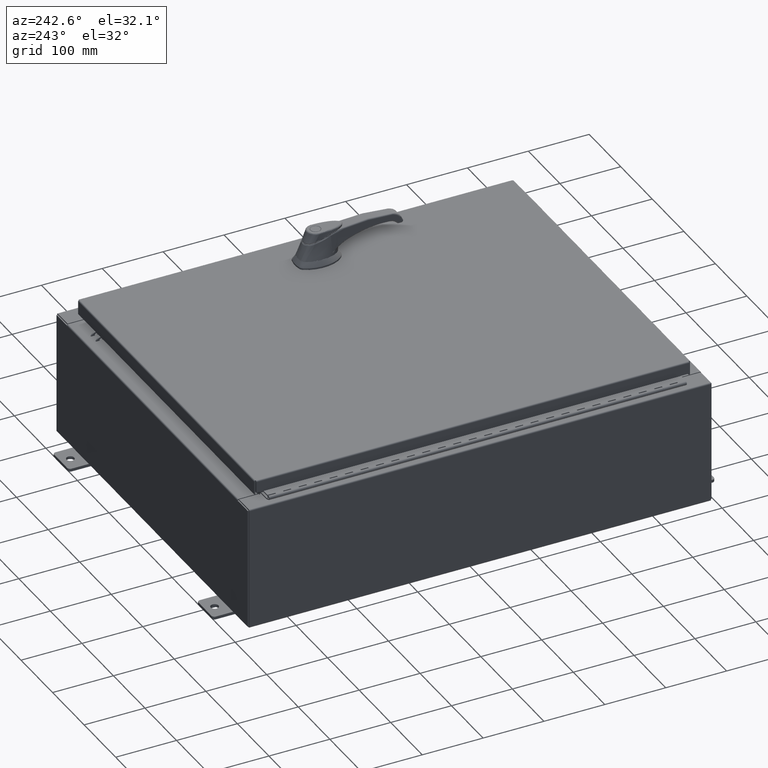
[diagram: clean part render]
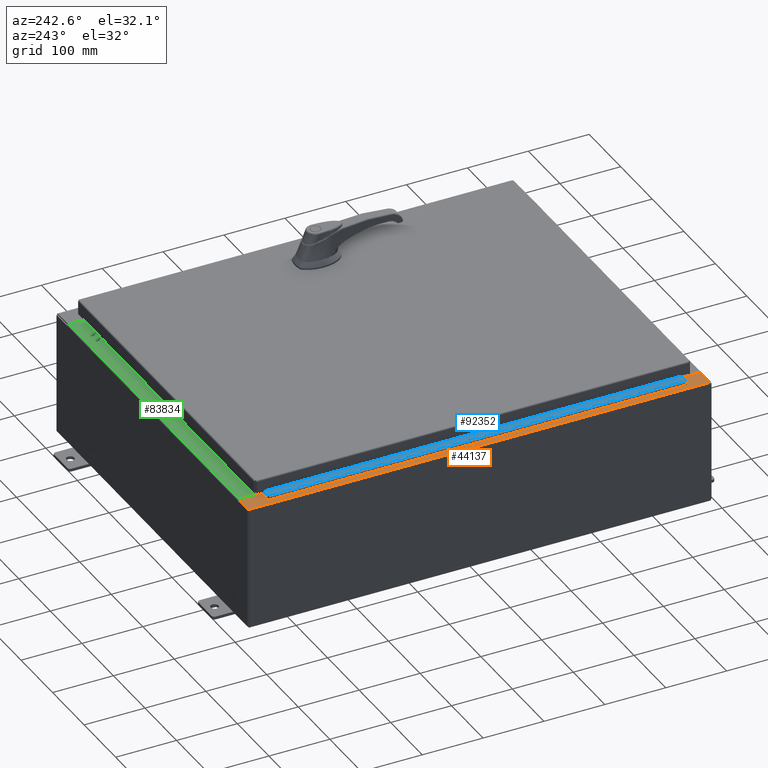
[diagram: same view with three faces highlighted in distinct colors, each labeled with its STEP entity id]
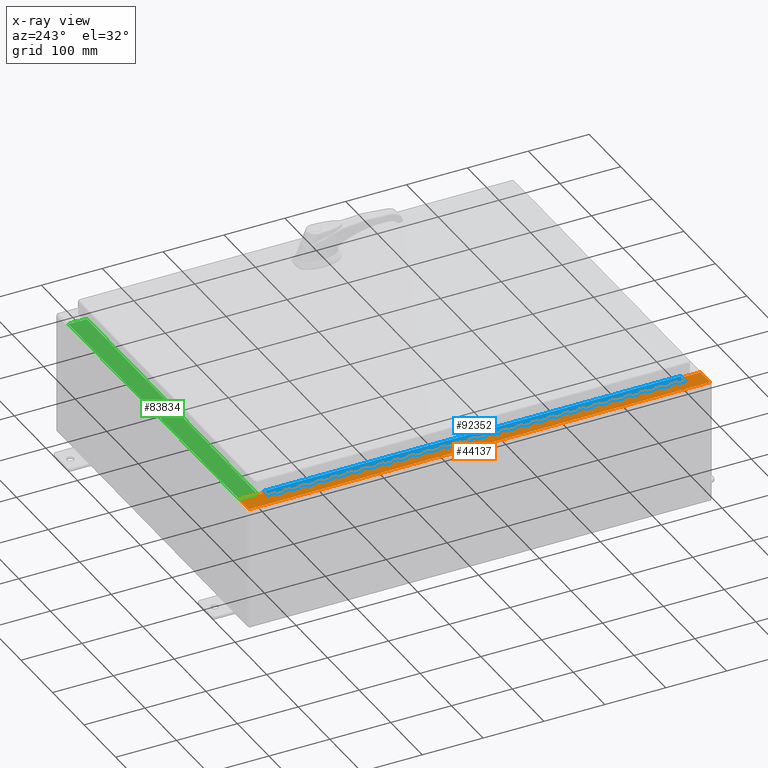
[diagram: x-ray of the same camera — body ghosted, the three highlighted faces saturated]
A machine part, auxiliary view with three faces highlighted in distinct colors.
The next image is the same camera in x-ray (body ghosted, the three faces saturated) — at least one of them is partly hidden behind the body in this view.
Their STEP definitions:

[orange] entity #44137 — the highlighted planar face has unit normal (0, 0, -1).
#334 = VERTEX_POINT ( 'NONE', #7358 ) ;
#1952 = VECTOR ( 'NONE', #107191, 39.37007874015748100 ) ;
#2184 = AXIS2_PLACEMENT_3D ( 'NONE', #57962, #94402, #40113 ) ;
#4300 = ORIENTED_EDGE ( 'NONE', *, *, #53130, .F. ) ;
#4834 = CARTESIAN_POINT ( 'NONE',  ( -10.75005000000003400, 13.61242499999999600, 7.925300000000010700 ) ) ;
#5356 = EDGE_CURVE ( 'NONE', #61987, #334, #106219, .T. ) ;
#6622 = EDGE_CURVE ( 'NONE', #70329, #70460, #43712, .T. ) ;
#7358 = CARTESIAN_POINT ( 'NONE',  ( -10.69970000000003400, -14.92530000000000000, 7.925300000000008900 ) ) ;
#7520 = DIRECTION ( 'NONE',  ( -1.000000000000000000, 0.0000000000000000000, 2.170286390200049500E-014 ) ) ;
#7867 = DIRECTION ( 'NONE',  ( 0.0000000000000000000, 1.000000000000000000, 0.0000000000000000000 ) ) ;
#9525 = ORIENTED_EDGE ( 'NONE', *, *, #65666, .T. ) ;
#12733 = VECTOR ( 'NONE', #49964, 39.37007874015748100 ) ;
#13321 = EDGE_CURVE ( 'NONE', #334, #88103, #74842, .T. ) ;
#13799 = CARTESIAN_POINT ( 'NONE',  ( -10.69970000000003400, 13.63109999999999600, 7.925300000000008900 ) ) ;
#13887 = DIRECTION ( 'NONE',  ( 1.000000000000000000, 0.0000000000000000000, 0.0000000000000000000 ) ) ;
#13994 = CARTESIAN_POINT ( 'NONE',  ( -5.679009539018295300E-014, -14.92530000000000000, 7.925300000000085300 ) ) ;
#15173 = AXIS2_PLACEMENT_3D ( 'NONE', #4834, #68149, #13887 ) ;
#17953 = LINE ( 'NONE', #106807, #42029 ) ;
#18832 = CARTESIAN_POINT ( 'NONE',  ( -10.75005000000003400, -13.63109999999999800, 7.925300000000008900 ) ) ;
#21091 = CARTESIAN_POINT ( 'NONE',  ( -11.91230000000003400, -14.92530000000000000, 7.925300000000000000 ) ) ;
#21416 = VERTEX_POINT ( 'NONE', #22976 ) ;
#22294 = LINE ( 'NONE', #94058, #112963 ) ;
#22976 = CARTESIAN_POINT ( 'NONE',  ( -11.91230000000003400, 14.92530000000000000, 7.925300000000000000 ) ) ;
#25308 = DIRECTION ( 'NONE',  ( -0.0000000000000000000, 1.000000000000000000, -0.0000000000000000000 ) ) ;
#25755 = VECTOR ( 'NONE', #33479, 39.37007874015748100 ) ;
#25954 = LINE ( 'NONE', #89001, #1952 ) ;
#26190 = DIRECTION ( 'NONE',  ( 1.000000000000000000, 0.0000000000000000000, 0.0000000000000000000 ) ) ;
#28384 = CARTESIAN_POINT ( 'NONE',  ( -10.69970000000003400, 14.92530000000000000, 7.925300000000008900 ) ) ;
#28413 = CARTESIAN_POINT ( 'NONE',  ( -5.679009539018295300E-014, 14.92530000000000000, 7.925300000000085300 ) ) ;
#29299 = LINE ( 'NONE', #79575, #53351 ) ;
#29479 = VECTOR ( 'NONE', #7867, 39.37007874015748100 ) ;
#31184 = EDGE_CURVE ( 'NONE', #52061, #70329, #100194, .T. ) ;
#32363 = AXIS2_PLACEMENT_3D ( 'NONE', #107753, #53469, #116839 ) ;
#33479 = DIRECTION ( 'NONE',  ( -1.000000000000000000, 0.0000000000000000000, 0.0000000000000000000 ) ) ;
#33811 = ORIENTED_EDGE ( 'NONE', *, *, #6622, .F. ) ;
#34647 = CARTESIAN_POINT ( 'NONE',  ( -10.75005000000003400, 13.63109999999999600, 7.925300000000008900 ) ) ;
#37132 = DIRECTION ( 'NONE',  ( -1.000000000000000000, 0.0000000000000000000, -7.132762385546384700E-015 ) ) ;
#37836 = CARTESIAN_POINT ( 'NONE',  ( -10.71270000000003500, -13.59375000000000000, 7.925300000000010700 ) ) ;
#40113 = DIRECTION ( 'NONE',  ( -1.000000000000000000, 0.0000000000000000000, -7.132762385546384700E-015 ) ) ;
#41036 = ORIENTED_EDGE ( 'NONE', *, *, #104327, .F. ) ;
#41907 = CARTESIAN_POINT ( 'NONE',  ( -10.75005000000003400, -13.59375000000000000, 7.925300000000008900 ) ) ;
#41946 = VERTEX_POINT ( 'NONE', #37836 ) ;
#42029 = VECTOR ( 'NONE', #61677, 39.37007874015748100 ) ;
#43712 = LINE ( 'NONE', #98307, #82152 ) ;
#44137 = ADVANCED_FACE ( 'NONE', ( #88201 ), #67121, .F. ) ;
#45258 = VERTEX_POINT ( 'NONE', #18832 ) ;
#49964 = DIRECTION ( 'NONE',  ( 1.000000000000000000, -0.0000000000000000000, 7.132762385546384700E-015 ) ) ;
#51039 = CARTESIAN_POINT ( 'NONE',  ( -10.69970000000003400, -13.63110000000000200, 7.925300000000008900 ) ) ;
#51140 = VERTEX_POINT ( 'NONE', #28384 ) ;
#52061 = VERTEX_POINT ( 'NONE', #34647 ) ;
#52800 = CIRCLE ( 'NONE', #32363, 0.01867499999999949400 ) ;
#53130 = EDGE_CURVE ( 'NONE', #100224, #52061, #82351, .T. ) ;
#53351 = VECTOR ( 'NONE', #25308, 39.37007874015748100 ) ;
#53469 = DIRECTION ( 'NONE',  ( -7.132762385546384700E-015, -0.0000000000000000000, 1.000000000000000000 ) ) ;
#53668 = ORIENTED_EDGE ( 'NONE', *, *, #13321, .T. ) ;
#55490 = LINE ( 'NONE', #96605, #25755 ) ;
#57663 = ORIENTED_EDGE ( 'NONE', *, *, #72692, .F. ) ;
#57962 = CARTESIAN_POINT ( 'NONE',  ( -5.679009539018295300E-014, 0.0000000000000000000, 7.925300000000085300 ) ) ;
#59497 = ORIENTED_EDGE ( 'NONE', *, *, #97617, .F. ) ;
#61677 = DIRECTION ( 'NONE',  ( 0.0000000000000000000, 1.000000000000000000, 0.0000000000000000000 ) ) ;
#61702 = CARTESIAN_POINT ( 'NONE',  ( -10.69970000000003400, 13.63109999999999600, 7.925300000000009800 ) ) ;
#61987 = VERTEX_POINT ( 'NONE', #21091 ) ;
#63944 = VERTEX_POINT ( 'NONE', #41907 ) ;
#65666 = EDGE_CURVE ( 'NONE', #100224, #51140, #17953, .T. ) ;
#67121 = PLANE ( 'NONE',  #2184 ) ;
#67163 = DIRECTION ( 'NONE',  ( 1.000000000000000000, 0.0000000000000000000, -2.170286390200049500E-014 ) ) ;
#68149 = DIRECTION ( 'NONE',  ( -7.132762385546384700E-015, -0.0000000000000000000, 1.000000000000000000 ) ) ;
#70329 = VERTEX_POINT ( 'NONE', #79305 ) ;
#70460 = VERTEX_POINT ( 'NONE', #116840 ) ;
#71227 = CARTESIAN_POINT ( 'NONE',  ( -10.69970000000003400, 0.0000000000000000000, 7.925300000000008900 ) ) ;
#72692 = EDGE_CURVE ( 'NONE', #45258, #88103, #22294, .T. ) ;
#74135 = ORIENTED_EDGE ( 'NONE', *, *, #111692, .F. ) ;
#74842 = LINE ( 'NONE', #71227, #29479 ) ;
#79305 = CARTESIAN_POINT ( 'NONE',  ( -10.75005000000003400, 13.59374999999999800, 7.925300000000008900 ) ) ;
#79575 = CARTESIAN_POINT ( 'NONE',  ( -11.91230000000003400, 14.92530000000000000, 7.925300000000000000 ) ) ;
#81372 = ORIENTED_EDGE ( 'NONE', *, *, #85761, .T. ) ;
#81626 = ORIENTED_EDGE ( 'NONE', *, *, #31184, .F. ) ;
#82152 = VECTOR ( 'NONE', #26190, 39.37007874015748100 ) ;
#82351 = LINE ( 'NONE', #61702, #103596 ) ;
#83234 = ORIENTED_EDGE ( 'NONE', *, *, #5356, .T. ) ;
#85131 = EDGE_CURVE ( 'NONE', #63944, #45258, #52800, .T. ) ;
#85761 = EDGE_CURVE ( 'NONE', #51140, #21416, #109416, .T. ) ;
#85836 = ORIENTED_EDGE ( 'NONE', *, *, #85131, .F. ) ;
#88103 = VERTEX_POINT ( 'NONE', #51039 ) ;
#88201 = FACE_OUTER_BOUND ( 'NONE', #91500, .T. ) ;
#89001 = CARTESIAN_POINT ( 'NONE',  ( -10.71270000000003500, 13.59375000000000000, 7.925300000000010700 ) ) ;
#91500 = EDGE_LOOP ( 'NONE', ( #4300, #9525, #81372, #41036, #83234, #53668, #57663, #85836, #59497, #74135, #33811, #81626 ) ) ;
#94058 = CARTESIAN_POINT ( 'NONE',  ( -10.75005000000003400, -13.63109999999999800, 7.925300000000010700 ) ) ;
#94402 = DIRECTION ( 'NONE',  ( 7.132762385546384700E-015, 0.0000000000000000000, -1.000000000000000000 ) ) ;
#96605 = CARTESIAN_POINT ( 'NONE',  ( -10.71270000000003500, -13.59375000000000000, 7.925300000000010700 ) ) ;
#97617 = EDGE_CURVE ( 'NONE', #41946, #63944, #55490, .T. ) ;
#98307 = CARTESIAN_POINT ( 'NONE',  ( -10.75005000000003400, 13.59374999999999800, 7.925300000000010700 ) ) ;
#100194 = CIRCLE ( 'NONE', #15173, 0.01867499999999949400 ) ;
#100224 = VERTEX_POINT ( 'NONE', #13799 ) ;
#103596 = VECTOR ( 'NONE', #7520, 39.37007874015748100 ) ;
#104327 = EDGE_CURVE ( 'NONE', #61987, #21416, #29299, .T. ) ;
#106219 = LINE ( 'NONE', #13994, #12733 ) ;
#106807 = CARTESIAN_POINT ( 'NONE',  ( -10.69970000000003400, 0.0000000000000000000, 7.925300000000008900 ) ) ;
#107191 = DIRECTION ( 'NONE',  ( -0.0000000000000000000, -1.000000000000000000, -0.0000000000000000000 ) ) ;
#107753 = CARTESIAN_POINT ( 'NONE',  ( -10.75005000000003400, -13.61242500000000000, 7.925300000000010700 ) ) ;
#109416 = LINE ( 'NONE', #28413, #112260 ) ;
#111692 = EDGE_CURVE ( 'NONE', #70460, #41946, #25954, .T. ) ;
#112260 = VECTOR ( 'NONE', #37132, 39.37007874015748100 ) ;
#112963 = VECTOR ( 'NONE', #67163, 39.37007874015748100 ) ;
#116839 = DIRECTION ( 'NONE',  ( 1.000000000000000000, 0.0000000000000000000, 0.0000000000000000000 ) ) ;
#116840 = CARTESIAN_POINT ( 'NONE',  ( -10.71270000000003500, 13.59374999999999800, 7.925300000000010700 ) ) ;

[blue] entity #92352 — the highlighted planar face has unit normal (-0, -0, 1).
#135 = VERTEX_POINT ( 'NONE', #37471 ) ;
#166 = VERTEX_POINT ( 'NONE', #73568 ) ;
#213 = ORIENTED_EDGE ( 'NONE', *, *, #74906, .F. ) ;
#237 = DIRECTION ( 'NONE',  ( -3.389037039080723100E-015, -1.000000000000000000, 0.0000000000000000000 ) ) ;
#323 = VECTOR ( 'NONE', #108301, 39.37007874015748100 ) ;
#575 = VECTOR ( 'NONE', #79965, 39.37007874015748100 ) ;
#734 = DIRECTION ( 'NONE',  ( 0.0000000000000000000, -0.0000000000000000000, -1.000000000000000000 ) ) ;
#860 = EDGE_CURVE ( 'NONE', #38036, #102776, #52901, .T. ) ;
#909 = LINE ( 'NONE', #100466, #70276 ) ;
#960 = VERTEX_POINT ( 'NONE', #4240 ) ;
#1025 = LINE ( 'NONE', #51987, #94455 ) ;
#1463 = ORIENTED_EDGE ( 'NONE', *, *, #83393, .T. ) ;
#1484 = DIRECTION ( 'NONE',  ( -3.389037039080723100E-015, -1.000000000000000000, 0.0000000000000000000 ) ) ;
#1500 = CARTESIAN_POINT ( 'NONE',  ( -0.6869999999999973900, 0.8004999999999995500, -5.500000000000000000 ) ) ;
#1513 = DIRECTION ( 'NONE',  ( 3.389037039080723100E-015, 1.000000000000000000, -0.0000000000000000000 ) ) ;
#1650 = DIRECTION ( 'NONE',  ( 0.0000000000000000000, -0.0000000000000000000, -1.000000000000000000 ) ) ;
#1906 = CARTESIAN_POINT ( 'NONE',  ( -0.6869999999999973900, 0.8004999999999995500, -20.50000000000000400 ) ) ;
#1976 = CARTESIAN_POINT ( 'NONE',  ( -0.6869999999999978300, 0.6754999999999996600, -27.00000000000000000 ) ) ;
#2254 = CARTESIAN_POINT ( 'NONE',  ( -0.6869999999999978300, 0.6754999999999996600, -2.000000000000000000 ) ) ;
#2364 = VECTOR ( 'NONE', #42793, 39.37007874015748100 ) ;
#2555 = CARTESIAN_POINT ( 'NONE',  ( -0.6869999999999998300, 0.07549999999999991400, 0.0000000000000000000 ) ) ;
#2559 = CARTESIAN_POINT ( 'NONE',  ( -0.6869999999999982800, 0.5504999999999997700, -2.500000000000000000 ) ) ;
#2593 = LINE ( 'NONE', #95105, #93189 ) ;
#2739 = VECTOR ( 'NONE', #53933, 39.37007874015748100 ) ;
#2781 = EDGE_CURVE ( 'NONE', #77274, #55869, #71158, .T. ) ;
#3097 = VECTOR ( 'NONE', #84527, 39.37007874015748100 ) ;
#3130 = CARTESIAN_POINT ( 'NONE',  ( -0.6869999999999978300, 0.6754999999999996600, -17.00000000000000000 ) ) ;
#3278 = EDGE_CURVE ( 'NONE', #110828, #26119, #69682, .T. ) ;
#3800 = LINE ( 'NONE', #47214, #70339 ) ;
#3893 = ORIENTED_EDGE ( 'NONE', *, *, #860, .F. ) ;
#3925 = CARTESIAN_POINT ( 'NONE',  ( -0.6869999999999973900, 0.8004999999999995500, -2.500000000000000000 ) ) ;
#3997 = DIRECTION ( 'NONE',  ( 0.0000000000000000000, -0.0000000000000000000, -1.000000000000000000 ) ) ;
#4001 = VECTOR ( 'NONE', #71924, 39.37007874015748100 ) ;
#4015 = DIRECTION ( 'NONE',  ( 0.0000000000000000000, 0.0000000000000000000, 1.000000000000000000 ) ) ;
#4195 = EDGE_CURVE ( 'NONE', #94552, #4874, #93619, .T. ) ;
#4240 = CARTESIAN_POINT ( 'NONE',  ( -0.6869999999999978300, 0.6754999999999996600, -18.50000000000000000 ) ) ;
#4302 = VECTOR ( 'NONE', #9124, 39.37007874015748100 ) ;
#4391 = CARTESIAN_POINT ( 'NONE',  ( -0.6869999999999973900, 0.8004999999999995500, -19.00000000000000000 ) ) ;
#4393 = LINE ( 'NONE', #53350, #28365 ) ;
#4446 = CARTESIAN_POINT ( 'NONE',  ( -0.6869999999999982800, 0.5504999999999997700, -25.50000000000000400 ) ) ;
#4508 = EDGE_CURVE ( 'NONE', #19198, #39900, #4393, .T. ) ;
#4685 = ORIENTED_EDGE ( 'NONE', *, *, #76153, .F. ) ;
#4734 = CARTESIAN_POINT ( 'NONE',  ( -0.6869999999999973900, 0.8004999999999995500, -15.50000000000000000 ) ) ;
#4786 = CARTESIAN_POINT ( 'NONE',  ( -0.6869999999999982800, 0.5504999999999997700, -17.00000000000000000 ) ) ;
#4816 = CARTESIAN_POINT ( 'NONE',  ( -0.6869999999999978300, 0.6754999999999996600, -7.499999999999999100 ) ) ;
#4837 = VECTOR ( 'NONE', #734, 39.37007874015748100 ) ;
#4848 = ORIENTED_EDGE ( 'NONE', *, *, #105213, .F. ) ;
#4874 = VERTEX_POINT ( 'NONE', #15697 ) ;
#4882 = DIRECTION ( 'NONE',  ( -3.389037039080723100E-015, -1.000000000000000000, 0.0000000000000000000 ) ) ;
#4999 = EDGE_CURVE ( 'NONE', #105734, #19521, #50974, .T. ) ;
#5213 = VECTOR ( 'NONE', #49934, 39.37007874015748100 ) ;
#5285 = DIRECTION ( 'NONE',  ( 3.389037039080723100E-015, 1.000000000000000000, -0.0000000000000000000 ) ) ;
#5498 = CARTESIAN_POINT ( 'NONE',  ( -0.6869999999999978300, 0.6754999999999996600, -27.00000000000000000 ) ) ;
#5632 = CARTESIAN_POINT ( 'NONE',  ( -0.6869999999999978300, 0.6754999999999996600, -3.500000000000000000 ) ) ;
#5833 = VECTOR ( 'NONE', #111182, 39.37007874015748100 ) ;
#5906 = DIRECTION ( 'NONE',  ( -3.389037039080723100E-015, -1.000000000000000000, 0.0000000000000000000 ) ) ;
#6146 = EDGE_CURVE ( 'NONE', #69404, #77274, #39494, .T. ) ;
#6514 = LINE ( 'NONE', #40327, #27652 ) ;
#6593 = ORIENTED_EDGE ( 'NONE', *, *, #39475, .F. ) ;
#6621 = VERTEX_POINT ( 'NONE', #62260 ) ;
#6725 = ORIENTED_EDGE ( 'NONE', *, *, #95166, .F. ) ;
#6818 = LINE ( 'NONE', #25973, #81853 ) ;
#6819 = DIRECTION ( 'NONE',  ( 3.369016658928398200E-015, 1.000000000000000000, 0.0000000000000000000 ) ) ;
#6958 = ORIENTED_EDGE ( 'NONE', *, *, #113677, .F. ) ;
#7256 = CARTESIAN_POINT ( 'NONE',  ( -0.6869999999999973900, 0.8004999999999995500, -21.50000000000000400 ) ) ;
#7480 = CARTESIAN_POINT ( 'NONE',  ( -0.6869999999999982800, 0.5504999999999997700, -11.00000000000000000 ) ) ;
#7487 = CARTESIAN_POINT ( 'NONE',  ( -0.6869999999999978300, 0.6754999999999996600, -2.999999999999999600 ) ) ;
#7618 = EDGE_CURVE ( 'NONE', #89199, #74137, #9801, .T. ) ;
#7724 = CARTESIAN_POINT ( 'NONE',  ( -0.6869999999999982800, 0.5504999999999997700, -14.49999999999999800 ) ) ;
#7811 = VERTEX_POINT ( 'NONE', #48465 ) ;
#7859 = EDGE_CURVE ( 'NONE', #58267, #10533, #14022, .T. ) ;
#7902 = VECTOR ( 'NONE', #84253, 39.37007874015748100 ) ;
#7906 = ORIENTED_EDGE ( 'NONE', *, *, #62524, .F. ) ;
#8072 = ORIENTED_EDGE ( 'NONE', *, *, #63467, .F. ) ;
#8141 = ORIENTED_EDGE ( 'NONE', *, *, #2781, .F. ) ;
#8173 = VERTEX_POINT ( 'NONE', #108588 ) ;
#8375 = ORIENTED_EDGE ( 'NONE', *, *, #103853, .T. ) ;
#8476 = EDGE_CURVE ( 'NONE', #68626, #57338, #100317, .T. ) ;
#8552 = VECTOR ( 'NONE', #58674, 39.37007874015748100 ) ;
#8565 = VERTEX_POINT ( 'NONE', #93040 ) ;
#8574 = CARTESIAN_POINT ( 'NONE',  ( -0.6869999999999973900, 0.8004999999999995500, -3.500000000000000000 ) ) ;
#8717 = DIRECTION ( 'NONE',  ( 0.0000000000000000000, 0.0000000000000000000, 1.000000000000000000 ) ) ;
#8764 = DIRECTION ( 'NONE',  ( 0.0000000000000000000, 0.0000000000000000000, 1.000000000000000000 ) ) ;
#8856 = ORIENTED_EDGE ( 'NONE', *, *, #10869, .F. ) ;
#8891 = DIRECTION ( 'NONE',  ( 0.0000000000000000000, 0.0000000000000000000, 1.000000000000000000 ) ) ;
#9013 = LINE ( 'NONE', #70878, #575 ) ;
#9052 = LINE ( 'NONE', #107046, #30290 ) ;
#9124 = DIRECTION ( 'NONE',  ( 0.0000000000000000000, -0.0000000000000000000, -1.000000000000000000 ) ) ;
#9229 = CARTESIAN_POINT ( 'NONE',  ( -0.6869999999999982800, 0.5504999999999997700, -2.999999999999999600 ) ) ;
#9334 = VECTOR ( 'NONE', #19486, 39.37007874015748100 ) ;
#9697 = CARTESIAN_POINT ( 'NONE',  ( -0.6869999999999978300, 0.6754999999999996600, -16.50000000000000000 ) ) ;
#9801 = LINE ( 'NONE', #27918, #100426 ) ;
#10015 = VECTOR ( 'NONE', #50075, 39.37007874015748100 ) ;
#10094 = LINE ( 'NONE', #76416, #106416 ) ;
#10118 = CARTESIAN_POINT ( 'NONE',  ( -0.6869999999999982800, 0.5504999999999997700, -14.00000000000000000 ) ) ;
#10134 = EDGE_LOOP ( 'NONE', ( #56243, #18826, #113849, #14686, #113207, #4685, #62419, #110949, #73808, #71548, #114665, #76995, #87966, #77437, #108132, #62742, #57021, #13935, #22891, #58226, #62675, #68043, #113890, #15396, #71224, #12769, #3893, #8856, #105115, #51233, #8141, #14291, #76554, #105044, #62203, #38650, #30820, #14637, #76407, #4848, #75349, #99324, #213, #117030, #79533, #91971, #29826, #80511, #54098, #46241, #78262, #115922, #95339, #45394, #24120, #15617, #112886, #97811, #40811, #48090, #26488, #23036, #64597, #93711, #112969, #65477, #106469, #108978, #90095, #58908, #67960, #56259, #87666, #39104, #17236, #104111, #15677, #83069, #102126, #52472, #103194, #12080, #53106, #13975, #98693, #57779, #59023, #35503, #26040, #33926, #7906, #26880, #1463, #76117, #54392, #83542, #80429, #28366, #6725, #34825, #101982, #23109, #6958, #6593, #72186, #70730, #73174, #27365, #8375, #8072 ) ) ;
#10209 = DIRECTION ( 'NONE',  ( 0.0000000000000000000, 0.0000000000000000000, 1.000000000000000000 ) ) ;
#10242 = EDGE_CURVE ( 'NONE', #51060, #48395, #35341, .T. ) ;
#10513 = VECTOR ( 'NONE', #36177, 39.37007874015748100 ) ;
#10533 = VERTEX_POINT ( 'NONE', #88226 ) ;
#10587 = DIRECTION ( 'NONE',  ( 0.0000000000000000000, -0.0000000000000000000, -1.000000000000000000 ) ) ;
#10695 = CARTESIAN_POINT ( 'NONE',  ( -0.6869999999999978300, 0.6754999999999996600, -25.50000000000000400 ) ) ;
#10869 = EDGE_CURVE ( 'NONE', #71537, #38036, #24143, .T. ) ;
#11079 = CARTESIAN_POINT ( 'NONE',  ( -0.6869999999999982800, 0.5504999999999997700, -22.50000000000000000 ) ) ;
#11139 = LINE ( 'NONE', #44877, #104615 ) ;
#11283 = LINE ( 'NONE', #47449, #56559 ) ;
#11301 = VECTOR ( 'NONE', #26844, 39.37007874015748100 ) ;
#11581 = CARTESIAN_POINT ( 'NONE',  ( -0.6869999999999982800, 0.5504999999999997700, -3.500000000000000000 ) ) ;
#11790 = CARTESIAN_POINT ( 'NONE',  ( -0.6869999999999978300, 0.6754999999999996600, -14.49999999999999800 ) ) ;
#11906 = LINE ( 'NONE', #106270, #35926 ) ;
#11974 = CARTESIAN_POINT ( 'NONE',  ( -0.6869999999999978300, 0.6754999999999996600, -27.00000000000000000 ) ) ;
#12080 = ORIENTED_EDGE ( 'NONE', *, *, #98783, .F. ) ;
#12111 = CARTESIAN_POINT ( 'NONE',  ( -0.6869999999999982800, 0.5504999999999997700, -1.499999999999999800 ) ) ;
#12321 = VERTEX_POINT ( 'NONE', #97969 ) ;
#12464 = EDGE_CURVE ( 'NONE', #12321, #74137, #86271, .T. ) ;
#12757 = CARTESIAN_POINT ( 'NONE',  ( -0.6869999999999978300, 0.6754999999999996600, -8.500000000000000000 ) ) ;
#12769 = ORIENTED_EDGE ( 'NONE', *, *, #37383, .F. ) ;
#13062 = VERTEX_POINT ( 'NONE', #31995 ) ;
#13127 = LINE ( 'NONE', #49997, #34324 ) ;
#13339 = EDGE_CURVE ( 'NONE', #57338, #39210, #98900, .T. ) ;
#13703 = CARTESIAN_POINT ( 'NONE',  ( -0.6869999999999973900, 0.8004999999999995500, -17.00000000000000000 ) ) ;
#13838 = VECTOR ( 'NONE', #58805, 39.37007874015748100 ) ;
#13894 = EDGE_CURVE ( 'NONE', #33550, #66919, #61983, .T. ) ;
#13935 = ORIENTED_EDGE ( 'NONE', *, *, #74078, .F. ) ;
#13975 = ORIENTED_EDGE ( 'NONE', *, *, #66199, .F. ) ;
#14017 = LINE ( 'NONE', #33566, #59296 ) ;
#14022 = LINE ( 'NONE', #39754, #107485 ) ;
#14029 = VECTOR ( 'NONE', #98241, 39.37007874015748100 ) ;
#14038 = VECTOR ( 'NONE', #10209, 39.37007874015748100 ) ;
#14084 = LINE ( 'NONE', #102185, #62232 ) ;
#14135 = VECTOR ( 'NONE', #49008, 39.37007874015748100 ) ;
#14230 = LINE ( 'NONE', #108612, #35414 ) ;
#14254 = DIRECTION ( 'NONE',  ( 0.0000000000000000000, -0.0000000000000000000, -1.000000000000000000 ) ) ;
#14291 = ORIENTED_EDGE ( 'NONE', *, *, #6146, .F. ) ;
#14415 = VECTOR ( 'NONE', #27534, 39.37007874015748100 ) ;
#14454 = LINE ( 'NONE', #109862, #83821 ) ;
#14524 = EDGE_CURVE ( 'NONE', #89900, #10533, #78946, .T. ) ;
#14637 = ORIENTED_EDGE ( 'NONE', *, *, #18649, .F. ) ;
#14686 = ORIENTED_EDGE ( 'NONE', *, *, #106780, .F. ) ;
#14715 = DIRECTION ( 'NONE',  ( -3.389037039080723100E-015, -1.000000000000000000, 0.0000000000000000000 ) ) ;
#14886 = VERTEX_POINT ( 'NONE', #9229 ) ;
#15075 = VERTEX_POINT ( 'NONE', #49559 ) ;
#15193 = LINE ( 'NONE', #55417, #81734 ) ;
#15396 = ORIENTED_EDGE ( 'NONE', *, *, #95980, .F. ) ;
#15617 = ORIENTED_EDGE ( 'NONE', *, *, #105950, .F. ) ;
#15677 = ORIENTED_EDGE ( 'NONE', *, *, #73550, .T. ) ;
#15697 = CARTESIAN_POINT ( 'NONE',  ( -0.6869999999999982800, 0.5504999999999997700, -1.000000000000000000 ) ) ;
#15789 = DIRECTION ( 'NONE',  ( -3.389037039080723100E-015, -1.000000000000000000, 0.0000000000000000000 ) ) ;
#15816 = CARTESIAN_POINT ( 'NONE',  ( -0.6869999999999982800, 0.5504999999999997700, -21.50000000000000400 ) ) ;
#16092 = VERTEX_POINT ( 'NONE', #41487 ) ;
#16108 = LINE ( 'NONE', #4391, #109597 ) ;
#16932 = CARTESIAN_POINT ( 'NONE',  ( -0.6869999999999973900, 0.8004999999999995500, -14.00000000000000000 ) ) ;
#17227 = CARTESIAN_POINT ( 'NONE',  ( -0.6869999999999982800, 0.5504999999999997700, -7.499999999999999100 ) ) ;
#17236 = ORIENTED_EDGE ( 'NONE', *, *, #62668, .F. ) ;
#17355 = DIRECTION ( 'NONE',  ( -3.389037039080723100E-015, -1.000000000000000000, 0.0000000000000000000 ) ) ;
#17487 = VERTEX_POINT ( 'NONE', #30725 ) ;
#17534 = DIRECTION ( 'NONE',  ( 0.0000000000000000000, 0.0000000000000000000, 1.000000000000000000 ) ) ;
#17552 = LINE ( 'NONE', #38598, #68622 ) ;
#17873 = CARTESIAN_POINT ( 'NONE',  ( -0.6869999999999978300, 0.6754999999999996600, -27.00000000000000000 ) ) ;
#17910 = EDGE_CURVE ( 'NONE', #46686, #82713, #38781, .T. ) ;
#17990 = DIRECTION ( 'NONE',  ( 0.0000000000000000000, -0.0000000000000000000, -1.000000000000000000 ) ) ;
#17996 = CARTESIAN_POINT ( 'NONE',  ( -0.6869999999999973900, 0.8004999999999995500, -26.00000000000000000 ) ) ;
#18045 = CARTESIAN_POINT ( 'NONE',  ( -0.6869999999999978300, 0.6754999999999996600, -20.50000000000000400 ) ) ;
#18394 = CARTESIAN_POINT ( 'NONE',  ( -0.6869999999999982800, 0.5504999999999997700, -12.99999999999999800 ) ) ;
#18406 = CARTESIAN_POINT ( 'NONE',  ( -0.6869999999999973900, 0.8004999999999995500, -19.50000000000000000 ) ) ;
#18429 = DIRECTION ( 'NONE',  ( -3.389037039080723100E-015, -1.000000000000000000, 0.0000000000000000000 ) ) ;
#18459 = CARTESIAN_POINT ( 'NONE',  ( -0.6869999999999978300, 0.6754999999999996600, -27.00000000000000000 ) ) ;
#18509 = CARTESIAN_POINT ( 'NONE',  ( -0.6869999999999982800, 0.5504999999999997700, -4.500000000000000000 ) ) ;
#18649 = EDGE_CURVE ( 'NONE', #40741, #13062, #23136, .T. ) ;
#18826 = ORIENTED_EDGE ( 'NONE', *, *, #93989, .T. ) ;
#18867 = CARTESIAN_POINT ( 'NONE',  ( -0.6869999999999973900, 0.8004999999999995500, -17.99999999999999600 ) ) ;
#19198 = VERTEX_POINT ( 'NONE', #12757 ) ;
#19277 = CARTESIAN_POINT ( 'NONE',  ( -0.6869999999999982800, 0.5504999999999997700, -16.50000000000000000 ) ) ;
#19308 = DIRECTION ( 'NONE',  ( 0.0000000000000000000, 0.0000000000000000000, 1.000000000000000000 ) ) ;
#19355 = CARTESIAN_POINT ( 'NONE',  ( -0.6869999999999982800, 0.5504999999999997700, -10.50000000000000000 ) ) ;
#19374 = VERTEX_POINT ( 'NONE', #98588 ) ;
#19405 = DIRECTION ( 'NONE',  ( 0.0000000000000000000, -0.0000000000000000000, -1.000000000000000000 ) ) ;
#19415 = EDGE_CURVE ( 'NONE', #62736, #101307, #71247, .T. ) ;
#19486 = DIRECTION ( 'NONE',  ( -3.389037039080723100E-015, -1.000000000000000000, 0.0000000000000000000 ) ) ;
#19521 = VERTEX_POINT ( 'NONE', #63734 ) ;
#19581 = VERTEX_POINT ( 'NONE', #19355 ) ;
#19660 = LINE ( 'NONE', #70950, #14029 ) ;
#19716 = VERTEX_POINT ( 'NONE', #39101 ) ;
#19759 = VECTOR ( 'NONE', #80595, 39.37007874015748100 ) ;
#19952 = CARTESIAN_POINT ( 'NONE',  ( -0.6869999999999973900, 0.8004999999999995500, -12.49999999999999800 ) ) ;
#20011 = VERTEX_POINT ( 'NONE', #35536 ) ;
#20354 = LINE ( 'NONE', #85910, #113861 ) ;
#20532 = VECTOR ( 'NONE', #56669, 39.37007874015748100 ) ;
#20699 = LINE ( 'NONE', #97055, #2364 ) ;
#20908 = VERTEX_POINT ( 'NONE', #103454 ) ;
#21224 = VERTEX_POINT ( 'NONE', #53079 ) ;
#21347 = VECTOR ( 'NONE', #76235, 39.37007874015748100 ) ;
#21633 = EDGE_CURVE ( 'NONE', #43504, #111080, #27529, .T. ) ;
#21675 = DIRECTION ( 'NONE',  ( -3.389037039080723100E-015, -1.000000000000000000, 0.0000000000000000000 ) ) ;
#22497 = LINE ( 'NONE', #105246, #62159 ) ;
#22841 = VERTEX_POINT ( 'NONE', #108872 ) ;
#22857 = CARTESIAN_POINT ( 'NONE',  ( -0.6869999999999973900, 0.8004999999999995500, -8.000000000000000000 ) ) ;
#22891 = ORIENTED_EDGE ( 'NONE', *, *, #81285, .F. ) ;
#23036 = ORIENTED_EDGE ( 'NONE', *, *, #112479, .F. ) ;
#23109 = ORIENTED_EDGE ( 'NONE', *, *, #69236, .F. ) ;
#23110 = DIRECTION ( 'NONE',  ( -3.389037039080723100E-015, -1.000000000000000000, 0.0000000000000000000 ) ) ;
#23136 = LINE ( 'NONE', #18867, #113793 ) ;
#23150 = CARTESIAN_POINT ( 'NONE',  ( -0.6869999999999973900, 0.8004999999999995500, -11.00000000000000000 ) ) ;
#23409 = VECTOR ( 'NONE', #77907, 39.37007874015748100 ) ;
#23474 = CARTESIAN_POINT ( 'NONE',  ( -0.6869999999999982800, 0.5504999999999997700, -5.500000000000000000 ) ) ;
#23542 = LINE ( 'NONE', #115642, #60345 ) ;
#23551 = VERTEX_POINT ( 'NONE', #79200 ) ;
#23940 = DIRECTION ( 'NONE',  ( 0.0000000000000000000, 0.0000000000000000000, 1.000000000000000000 ) ) ;
#24120 = ORIENTED_EDGE ( 'NONE', *, *, #8476, .F. ) ;
#24143 = LINE ( 'NONE', #1906, #72342 ) ;
#25973 = CARTESIAN_POINT ( 'NONE',  ( -0.6869999999999973900, 0.8004999999999995500, -12.99999999999999800 ) ) ;
#26040 = ORIENTED_EDGE ( 'NONE', *, *, #89929, .T. ) ;
#26119 = VERTEX_POINT ( 'NONE', #113354 ) ;
#26488 = ORIENTED_EDGE ( 'NONE', *, *, #40971, .T. ) ;
#26630 = CARTESIAN_POINT ( 'NONE',  ( -0.6869999999999978300, 0.6754999999999996600, -27.00000000000000000 ) ) ;
#26844 = DIRECTION ( 'NONE',  ( 0.0000000000000000000, 0.0000000000000000000, 1.000000000000000000 ) ) ;
#26866 = VECTOR ( 'NONE', #98773, 39.37007874015748100 ) ;
#26880 = ORIENTED_EDGE ( 'NONE', *, *, #37100, .F. ) ;
#27055 = CARTESIAN_POINT ( 'NONE',  ( -0.6869999999999982800, 0.5504999999999997700, -20.00000000000000000 ) ) ;
#27339 = DIRECTION ( 'NONE',  ( 0.0000000000000000000, 0.0000000000000000000, 1.000000000000000000 ) ) ;
#27365 = ORIENTED_EDGE ( 'NONE', *, *, #92158, .F. ) ;
#27529 = LINE ( 'NONE', #3925, #51645 ) ;
#27534 = DIRECTION ( 'NONE',  ( 0.0000000000000000000, 0.0000000000000000000, 1.000000000000000000 ) ) ;
#27598 = EDGE_CURVE ( 'NONE', #51060, #113016, #58161, .T. ) ;
#27652 = VECTOR ( 'NONE', #103714, 39.37007874015748100 ) ;
#27704 = CARTESIAN_POINT ( 'NONE',  ( -0.6869999999999982800, 0.5504999999999997700, -13.50000000000000000 ) ) ;
#27830 = DIRECTION ( 'NONE',  ( 3.389037039080723100E-015, 1.000000000000000000, -0.0000000000000000000 ) ) ;
#27918 = CARTESIAN_POINT ( 'NONE',  ( -0.6869999999999973900, 0.8004999999999995500, -14.99999999999999800 ) ) ;
#27976 = EDGE_CURVE ( 'NONE', #40138, #21224, #14230, .T. ) ;
#28042 = VECTOR ( 'NONE', #100173, 39.37007874015748100 ) ;
#28365 = VECTOR ( 'NONE', #17355, 39.37007874015748100 ) ;
#28366 = ORIENTED_EDGE ( 'NONE', *, *, #93469, .F. ) ;
#28662 = CARTESIAN_POINT ( 'NONE',  ( -0.6869999999999982800, 0.5504999999999997700, -18.50000000000000000 ) ) ;
#29274 = EDGE_CURVE ( 'NONE', #58892, #20011, #42354, .T. ) ;
#29377 = CARTESIAN_POINT ( 'NONE',  ( -0.6869999999999978300, 0.6754999999999996600, -14.00000000000000000 ) ) ;
#29826 = ORIENTED_EDGE ( 'NONE', *, *, #88976, .F. ) ;
#29899 = VERTEX_POINT ( 'NONE', #48904 ) ;
#29908 = VERTEX_POINT ( 'NONE', #103191 ) ;
#30034 = CARTESIAN_POINT ( 'NONE',  ( -0.6869999999999982800, 0.5504999999999997700, -17.50000000000000000 ) ) ;
#30166 = DIRECTION ( 'NONE',  ( 0.0000000000000000000, 0.0000000000000000000, 1.000000000000000000 ) ) ;
#30290 = VECTOR ( 'NONE', #98725, 39.37007874015748100 ) ;
#30725 = CARTESIAN_POINT ( 'NONE',  ( -0.6869999999999978300, 0.6754999999999996600, -10.50000000000000000 ) ) ;
#30815 = LINE ( 'NONE', #98593, #73347 ) ;
#30820 = ORIENTED_EDGE ( 'NONE', *, *, #66790, .T. ) ;
#30857 = EDGE_CURVE ( 'NONE', #23551, #20908, #96030, .T. ) ;
#31078 = DIRECTION ( 'NONE',  ( 3.389037039080723100E-015, 1.000000000000000000, -0.0000000000000000000 ) ) ;
#31749 = VERTEX_POINT ( 'NONE', #85182 ) ;
#31995 = CARTESIAN_POINT ( 'NONE',  ( -0.6869999999999978300, 0.6754999999999996600, -17.99999999999999600 ) ) ;
#32012 = LINE ( 'NONE', #55605, #80233 ) ;
#32041 = LINE ( 'NONE', #77372, #77410 ) ;
#32228 = DIRECTION ( 'NONE',  ( 3.389037039080723100E-015, 1.000000000000000000, -0.0000000000000000000 ) ) ;
#32558 = VERTEX_POINT ( 'NONE', #32774 ) ;
#32774 = CARTESIAN_POINT ( 'NONE',  ( -0.6869999999999978300, 0.6754999999999996600, -6.000000000000000900 ) ) ;
#33034 = VECTOR ( 'NONE', #74205, 39.37007874015748100 ) ;
#33098 = DIRECTION ( 'NONE',  ( 3.389037039080723100E-015, 1.000000000000000000, -0.0000000000000000000 ) ) ;
#33111 = VECTOR ( 'NONE', #74519, 39.37007874015748100 ) ;
#33117 = CARTESIAN_POINT ( 'NONE',  ( -0.6869999999999982800, 0.5504999999999997700, -2.000000000000000000 ) ) ;
#33550 = VERTEX_POINT ( 'NONE', #4786 ) ;
#33566 = CARTESIAN_POINT ( 'NONE',  ( -0.6869999999999973900, 0.8004999999999995500, -4.500000000000000000 ) ) ;
#33772 = VERTEX_POINT ( 'NONE', #7487 ) ;
#33926 = ORIENTED_EDGE ( 'NONE', *, *, #75846, .F. ) ;
#33953 = DIRECTION ( 'NONE',  ( 0.0000000000000000000, 0.0000000000000000000, 1.000000000000000000 ) ) ;
#33991 = CARTESIAN_POINT ( 'NONE',  ( -0.6869999999999978300, 0.6754999999999996600, -20.00000000000000000 ) ) ;
#34048 = DIRECTION ( 'NONE',  ( -3.389037039080723100E-015, -1.000000000000000000, 0.0000000000000000000 ) ) ;
#34135 = CARTESIAN_POINT ( 'NONE',  ( -0.6869999999999978300, 0.6754999999999996600, 0.0000000000000000000 ) ) ;
#34324 = VECTOR ( 'NONE', #113390, 39.37007874015748100 ) ;
#34458 = CARTESIAN_POINT ( 'NONE',  ( -0.6869999999999978300, 0.6754999999999996600, -14.99999999999999800 ) ) ;
#34461 = DIRECTION ( 'NONE',  ( 0.0000000000000000000, 0.0000000000000000000, 1.000000000000000000 ) ) ;
#34671 = EDGE_CURVE ( 'NONE', #74964, #115215, #56786, .T. ) ;
#34783 = LINE ( 'NONE', #30034, #7902 ) ;
#34825 = ORIENTED_EDGE ( 'NONE', *, *, #21633, .F. ) ;
#34898 = VECTOR ( 'NONE', #103030, 39.37007874015748100 ) ;
#34981 = CARTESIAN_POINT ( 'NONE',  ( -0.6869999999999982800, 0.5504999999999997700, -16.00000000000000000 ) ) ;
#35341 = LINE ( 'NONE', #58590, #11301 ) ;
#35414 = VECTOR ( 'NONE', #237, 39.37007874015748100 ) ;
#35503 = ORIENTED_EDGE ( 'NONE', *, *, #67494, .F. ) ;
#35536 = CARTESIAN_POINT ( 'NONE',  ( -0.6869999999999982800, 0.5504999999999997700, -22.50000000000000000 ) ) ;
#35824 = CARTESIAN_POINT ( 'NONE',  ( -0.6869999999999973900, 0.8004999999999995500, -9.000000000000000000 ) ) ;
#35926 = VECTOR ( 'NONE', #88076, 39.37007874015748100 ) ;
#36003 = LINE ( 'NONE', #93154, #54407 ) ;
#36010 = VERTEX_POINT ( 'NONE', #18509 ) ;
#36177 = DIRECTION ( 'NONE',  ( 3.389037039080723100E-015, 1.000000000000000000, -0.0000000000000000000 ) ) ;
#36206 = LINE ( 'NONE', #109764, #9334 ) ;
#36230 = VERTEX_POINT ( 'NONE', #114238 ) ;
#36267 = CARTESIAN_POINT ( 'NONE',  ( -0.6869999999999982800, 0.5504999999999997700, -10.00000000000000000 ) ) ;
#36536 = CARTESIAN_POINT ( 'NONE',  ( -0.6869999999999973900, 0.8004999999999995500, -21.00000000000000000 ) ) ;
#36786 = CARTESIAN_POINT ( 'NONE',  ( -0.6869999999999978300, 0.6754999999999996600, -17.50000000000000000 ) ) ;
#37030 = DIRECTION ( 'NONE',  ( 3.389037039080723100E-015, 1.000000000000000000, -0.0000000000000000000 ) ) ;
#37061 = EDGE_CURVE ( 'NONE', #55869, #53119, #22497, .T. ) ;
#37100 = EDGE_CURVE ( 'NONE', #111832, #36010, #14017, .T. ) ;
#37271 = VERTEX_POINT ( 'NONE', #99534 ) ;
#37383 = EDGE_CURVE ( 'NONE', #102776, #20908, #45068, .T. ) ;
#37471 = CARTESIAN_POINT ( 'NONE',  ( -0.6869999999999982800, 0.5504999999999997700, -26.50000000000000400 ) ) ;
#37479 = VECTOR ( 'NONE', #34461, 39.37007874015748100 ) ;
#38028 = CARTESIAN_POINT ( 'NONE',  ( -0.6869999999999978300, 0.6754999999999996600, -7.000000000000000000 ) ) ;
#38036 = VERTEX_POINT ( 'NONE', #76010 ) ;
#38043 = LINE ( 'NONE', #1976, #107494 ) ;
#38046 = CARTESIAN_POINT ( 'NONE',  ( -0.6869999999999978300, 0.6754999999999996600, -27.00000000000000000 ) ) ;
#38135 = CARTESIAN_POINT ( 'NONE',  ( -0.6869999999999982800, 0.5504999999999997700, -14.99999999999999800 ) ) ;
#38289 = EDGE_CURVE ( 'NONE', #43204, #97477, #96035, .T. ) ;
#38387 = CARTESIAN_POINT ( 'NONE',  ( -0.6869999999999973900, 0.8004999999999995500, -22.50000000000000000 ) ) ;
#38598 = CARTESIAN_POINT ( 'NONE',  ( -0.6869999999999982800, 0.5504999999999997700, -2.500000000000000000 ) ) ;
#38650 = ORIENTED_EDGE ( 'NONE', *, *, #111552, .F. ) ;
#38781 = LINE ( 'NONE', #38046, #33111 ) ;
#38984 = CARTESIAN_POINT ( 'NONE',  ( -0.6869999999999978300, 0.6754999999999996600, -9.000000000000000000 ) ) ;
#38995 = VERTEX_POINT ( 'NONE', #7724 ) ;
#39101 = CARTESIAN_POINT ( 'NONE',  ( -0.6869999999999978300, 0.6754999999999996600, -5.000000000000000000 ) ) ;
#39104 = ORIENTED_EDGE ( 'NONE', *, *, #105081, .F. ) ;
#39210 = VERTEX_POINT ( 'NONE', #29377 ) ;
#39288 = VECTOR ( 'NONE', #33953, 39.37007874015748100 ) ;
#39475 = EDGE_CURVE ( 'NONE', #75783, #8565, #105774, .T. ) ;
#39494 = LINE ( 'NONE', #18406, #57923 ) ;
#39754 = CARTESIAN_POINT ( 'NONE',  ( -0.6869999999999973900, 0.8004999999999995500, -16.00000000000000000 ) ) ;
#39850 = LINE ( 'NONE', #4734, #109296 ) ;
#39900 = VERTEX_POINT ( 'NONE', #94218 ) ;
#40138 = VERTEX_POINT ( 'NONE', #67944 ) ;
#40327 = CARTESIAN_POINT ( 'NONE',  ( -0.6869999999999978300, 0.6754999999999996600, -27.00000000000000000 ) ) ;
#40343 = EDGE_CURVE ( 'NONE', #62736, #50705, #36206, .T. ) ;
#40419 = CARTESIAN_POINT ( 'NONE',  ( -0.6869999999999978300, 0.6754999999999996600, -27.00000000000000000 ) ) ;
#40544 = DIRECTION ( 'NONE',  ( 0.0000000000000000000, 0.0000000000000000000, 1.000000000000000000 ) ) ;
#40741 = VERTEX_POINT ( 'NONE', #78433 ) ;
#40756 = DIRECTION ( 'NONE',  ( 0.0000000000000000000, 0.0000000000000000000, 1.000000000000000000 ) ) ;
#40808 = VERTEX_POINT ( 'NONE', #76353 ) ;
#40811 = ORIENTED_EDGE ( 'NONE', *, *, #34671, .F. ) ;
#40824 = CARTESIAN_POINT ( 'NONE',  ( -0.6869999999999982800, 0.5504999999999997700, -18.50000000000000000 ) ) ;
#40904 = CARTESIAN_POINT ( 'NONE',  ( -0.6869999999999978300, 0.6754999999999996600, -27.00000000000000000 ) ) ;
#40971 = EDGE_CURVE ( 'NONE', #40808, #43873, #47468, .T. ) ;
#41017 = VERTEX_POINT ( 'NONE', #33117 ) ;
#41291 = LINE ( 'NONE', #18459, #14415 ) ;
#41487 = CARTESIAN_POINT ( 'NONE',  ( -0.6869999999999982800, 0.5504999999999997700, -5.000000000000000000 ) ) ;
#41685 = EDGE_CURVE ( 'NONE', #43504, #67575, #104082, .T. ) ;
#41810 = LINE ( 'NONE', #19277, #105567 ) ;
#41980 = VERTEX_POINT ( 'NONE', #46953 ) ;
#42354 = LINE ( 'NONE', #38387, #111798 ) ;
#42793 = DIRECTION ( 'NONE',  ( 3.369016658928398200E-015, 1.000000000000000000, 0.0000000000000000000 ) ) ;
#42996 = LINE ( 'NONE', #51758, #103911 ) ;
#43204 = VERTEX_POINT ( 'NONE', #4816 ) ;
#43353 = CARTESIAN_POINT ( 'NONE',  ( -0.6869999999999973900, 0.8004999999999995500, -16.50000000000000000 ) ) ;
#43504 = VERTEX_POINT ( 'NONE', #104016 ) ;
#43873 = VERTEX_POINT ( 'NONE', #81010 ) ;
#44189 = EDGE_CURVE ( 'NONE', #113016, #6621, #13127, .T. ) ;
#44220 = DIRECTION ( 'NONE',  ( 3.389037039080723100E-015, 1.000000000000000000, -0.0000000000000000000 ) ) ;
#44498 = CARTESIAN_POINT ( 'NONE',  ( -0.6869999999999973900, 0.8004999999999995500, -22.00000000000000000 ) ) ;
#44600 = LINE ( 'NONE', #11581, #20532 ) ;
#44877 = CARTESIAN_POINT ( 'NONE',  ( -0.6869999999999978300, 0.6754999999999996600, -27.00000000000000000 ) ) ;
#44933 = CARTESIAN_POINT ( 'NONE',  ( -0.6869999999999973900, 0.8004999999999995500, -7.499999999999999100 ) ) ;
#45068 = LINE ( 'NONE', #36536, #117337 ) ;
#45394 = ORIENTED_EDGE ( 'NONE', *, *, #13339, .F. ) ;
#46065 = VECTOR ( 'NONE', #14254, 39.37007874015748100 ) ;
#46241 = ORIENTED_EDGE ( 'NONE', *, *, #7618, .F. ) ;
#46372 = VECTOR ( 'NONE', #18429, 39.37007874015748100 ) ;
#46467 = VERTEX_POINT ( 'NONE', #36267 ) ;
#46680 = DIRECTION ( 'NONE',  ( 0.0000000000000000000, -0.0000000000000000000, -1.000000000000000000 ) ) ;
#46686 = VERTEX_POINT ( 'NONE', #110728 ) ;
#46953 = CARTESIAN_POINT ( 'NONE',  ( -0.6869999999999978300, 0.6754999999999996600, -8.000000000000000000 ) ) ;
#47083 = VECTOR ( 'NONE', #8717, 39.37007874015748100 ) ;
#47214 = CARTESIAN_POINT ( 'NONE',  ( -0.6869999999999973900, 0.8004999999999995500, -9.500000000000000000 ) ) ;
#47449 = CARTESIAN_POINT ( 'NONE',  ( -0.6869999999999982800, 0.5504999999999997700, -23.50000000000000000 ) ) ;
#47468 = LINE ( 'NONE', #5498, #23409 ) ;
#47568 = CARTESIAN_POINT ( 'NONE',  ( -0.6869999999999978300, 0.6754999999999996600, -27.00000000000000000 ) ) ;
#47587 = CARTESIAN_POINT ( 'NONE',  ( -0.6869999999999982800, 0.5504999999999997700, -21.50000000000000400 ) ) ;
#47629 = EDGE_CURVE ( 'NONE', #31749, #166, #3800, .T. ) ;
#47792 = CARTESIAN_POINT ( 'NONE',  ( -0.6869999999999973900, 0.8004999999999995500, -7.000000000000000000 ) ) ;
#47919 = VECTOR ( 'NONE', #55171, 39.37007874015748100 ) ;
#47929 = DIRECTION ( 'NONE',  ( 0.0000000000000000000, 0.0000000000000000000, 1.000000000000000000 ) ) ;
#47978 = DIRECTION ( 'NONE',  ( 3.389037039080723100E-015, 1.000000000000000000, -0.0000000000000000000 ) ) ;
#48090 = ORIENTED_EDGE ( 'NONE', *, *, #84619, .F. ) ;
#48395 = VERTEX_POINT ( 'NONE', #99310 ) ;
#48465 = CARTESIAN_POINT ( 'NONE',  ( -0.6869999999999982800, 0.5504999999999997700, -24.99999999999999600 ) ) ;
#48478 = VERTEX_POINT ( 'NONE', #69160 ) ;
#48510 = EDGE_CURVE ( 'NONE', #55624, #107625, #6514, .T. ) ;
#48610 = EDGE_CURVE ( 'NONE', #26119, #7811, #91420, .T. ) ;
#48904 = CARTESIAN_POINT ( 'NONE',  ( -0.6869999999999982800, 0.5504999999999997700, -19.00000000000000000 ) ) ;
#48921 = LINE ( 'NONE', #97420, #112702 ) ;
#49008 = DIRECTION ( 'NONE',  ( 0.0000000000000000000, 0.0000000000000000000, 1.000000000000000000 ) ) ;
#49120 = CARTESIAN_POINT ( 'NONE',  ( -0.6869999999999982800, 0.5504999999999997700, -21.00000000000000000 ) ) ;
#49214 = CARTESIAN_POINT ( 'NONE',  ( -0.6869999999999982800, 0.5504999999999997700, -15.50000000000000000 ) ) ;
#49559 = CARTESIAN_POINT ( 'NONE',  ( -0.6869999999999978300, 0.6754999999999996600, -6.499999999999999100 ) ) ;
#49754 = DIRECTION ( 'NONE',  ( -3.389037039080723100E-015, -1.000000000000000000, 0.0000000000000000000 ) ) ;
#49934 = DIRECTION ( 'NONE',  ( 0.0000000000000000000, -0.0000000000000000000, -1.000000000000000000 ) ) ;
#49997 = CARTESIAN_POINT ( 'NONE',  ( -0.6869999999999982800, 0.5504999999999997700, -11.50000000000000000 ) ) ;
#50015 = EDGE_CURVE ( 'NONE', #101750, #106609, #86983, .T. ) ;
#50075 = DIRECTION ( 'NONE',  ( -3.389037039080723100E-015, -1.000000000000000000, 0.0000000000000000000 ) ) ;
#50705 = VERTEX_POINT ( 'NONE', #4446 ) ;
#50760 = DIRECTION ( 'NONE',  ( 0.0000000000000000000, -0.0000000000000000000, -1.000000000000000000 ) ) ;
#50974 = LINE ( 'NONE', #44498, #26866 ) ;
#51060 = VERTEX_POINT ( 'NONE', #99301 ) ;
#51063 = LINE ( 'NONE', #47792, #5833 ) ;
#51233 = ORIENTED_EDGE ( 'NONE', *, *, #37061, .F. ) ;
#51645 = VECTOR ( 'NONE', #21675, 39.37007874015748100 ) ;
#51659 = VECTOR ( 'NONE', #53073, 39.37007874015748100 ) ;
#51694 = LINE ( 'NONE', #1500, #72995 ) ;
#51758 = CARTESIAN_POINT ( 'NONE',  ( -0.6869999999999973900, 0.8004999999999995500, -18.50000000000000000 ) ) ;
#51987 = CARTESIAN_POINT ( 'NONE',  ( -0.6869999999999973900, 0.8004999999999995500, -2.999999999999999600 ) ) ;
#52455 = DIRECTION ( 'NONE',  ( -3.389037039080723100E-015, -1.000000000000000000, 0.0000000000000000000 ) ) ;
#52472 = ORIENTED_EDGE ( 'NONE', *, *, #60323, .F. ) ;
#52513 = CARTESIAN_POINT ( 'NONE',  ( -0.6869999999999978300, 0.6754999999999996600, -22.50000000000000000 ) ) ;
#52688 = LINE ( 'NONE', #40419, #82473 ) ;
#52765 = VECTOR ( 'NONE', #5285, 39.37007874015748100 ) ;
#52901 = LINE ( 'NONE', #73132, #4837 ) ;
#53010 = LINE ( 'NONE', #85490, #98400 ) ;
#53073 = DIRECTION ( 'NONE',  ( 0.0000000000000000000, -0.0000000000000000000, -1.000000000000000000 ) ) ;
#53079 = CARTESIAN_POINT ( 'NONE',  ( -0.6869999999999982800, 0.5504999999999997700, -23.50000000000000000 ) ) ;
#53106 = ORIENTED_EDGE ( 'NONE', *, *, #95297, .F. ) ;
#53119 = VERTEX_POINT ( 'NONE', #33991 ) ;
#53274 = LINE ( 'NONE', #104201, #5213 ) ;
#53282 = EDGE_CURVE ( 'NONE', #4874, #22841, #65344, .T. ) ;
#53350 = CARTESIAN_POINT ( 'NONE',  ( -0.6869999999999973900, 0.8004999999999995500, -8.500000000000000000 ) ) ;
#53545 = VECTOR ( 'NONE', #52455, 39.37007874015748100 ) ;
#53841 = CARTESIAN_POINT ( 'NONE',  ( -0.6869999999999978300, 0.6754999999999996600, -27.00000000000000000 ) ) ;
#53879 = VERTEX_POINT ( 'NONE', #49214 ) ;
#53933 = DIRECTION ( 'NONE',  ( 0.0000000000000000000, 0.0000000000000000000, 1.000000000000000000 ) ) ;
#54098 = ORIENTED_EDGE ( 'NONE', *, *, #12464, .T. ) ;
#54269 = CARTESIAN_POINT ( 'NONE',  ( -0.6869999999999978300, 0.6754999999999996600, -27.00000000000000000 ) ) ;
#54392 = ORIENTED_EDGE ( 'NONE', *, *, #82656, .F. ) ;
#54407 = VECTOR ( 'NONE', #47978, 39.37007874015748100 ) ;
#54870 = VERTEX_POINT ( 'NONE', #82784 ) ;
#55171 = DIRECTION ( 'NONE',  ( 0.0000000000000000000, 0.0000000000000000000, 1.000000000000000000 ) ) ;
#55267 = VECTOR ( 'NONE', #77501, 39.37007874015748100 ) ;
#55285 = CARTESIAN_POINT ( 'NONE',  ( -0.6869999999999978300, 0.6754999999999996600, -27.00000000000000000 ) ) ;
#55417 = CARTESIAN_POINT ( 'NONE',  ( -0.6869999999999982800, 0.5504999999999997700, -14.49999999999999800 ) ) ;
#55586 = DIRECTION ( 'NONE',  ( 3.389037039080723100E-015, 1.000000000000000000, -0.0000000000000000000 ) ) ;
#55605 = CARTESIAN_POINT ( 'NONE',  ( -0.6869999999999973900, 0.8004999999999995500, -17.50000000000000000 ) ) ;
#55624 = VERTEX_POINT ( 'NONE', #70333 ) ;
#55774 = CARTESIAN_POINT ( 'NONE',  ( -0.6869999999999982800, 0.5504999999999997700, -8.500000000000000000 ) ) ;
#55791 = EDGE_CURVE ( 'NONE', #98638, #33772, #11139, .T. ) ;
#55869 = VERTEX_POINT ( 'NONE', #27055 ) ;
#55878 = VERTEX_POINT ( 'NONE', #63530 ) ;
#55895 = VERTEX_POINT ( 'NONE', #82506 ) ;
#55950 = CARTESIAN_POINT ( 'NONE',  ( -0.6869999999999998300, 0.07549999999999991400, -27.00000000000000000 ) ) ;
#56104 = VECTOR ( 'NONE', #95202, 39.37007874015748100 ) ;
#56243 = ORIENTED_EDGE ( 'NONE', *, *, #68976, .F. ) ;
#56259 = ORIENTED_EDGE ( 'NONE', *, *, #47629, .F. ) ;
#56559 = VECTOR ( 'NONE', #3997, 39.37007874015748100 ) ;
#56669 = DIRECTION ( 'NONE',  ( 0.0000000000000000000, -0.0000000000000000000, -1.000000000000000000 ) ) ;
#56786 = LINE ( 'NONE', #89547, #107813 ) ;
#56984 = CARTESIAN_POINT ( 'NONE',  ( -0.6869999999999978300, 0.6754999999999996600, -26.00000000000000000 ) ) ;
#57021 = ORIENTED_EDGE ( 'NONE', *, *, #71084, .T. ) ;
#57338 = VERTEX_POINT ( 'NONE', #10118 ) ;
#57591 = VECTOR ( 'NONE', #14715, 39.37007874015748100 ) ;
#57779 = ORIENTED_EDGE ( 'NONE', *, *, #86300, .F. ) ;
#57923 = VECTOR ( 'NONE', #109077, 39.37007874015748100 ) ;
#58156 = VECTOR ( 'NONE', #5906, 39.37007874015748100 ) ;
#58161 = LINE ( 'NONE', #104346, #10015 ) ;
#58226 = ORIENTED_EDGE ( 'NONE', *, *, #29274, .F. ) ;
#58267 = VERTEX_POINT ( 'NONE', #34981 ) ;
#58437 = EDGE_CURVE ( 'NONE', #58892, #19521, #52688, .T. ) ;
#58590 = CARTESIAN_POINT ( 'NONE',  ( -0.6869999999999978300, 0.6754999999999996600, -27.00000000000000000 ) ) ;
#58674 = DIRECTION ( 'NONE',  ( 0.0000000000000000000, -0.0000000000000000000, -1.000000000000000000 ) ) ;
#58777 = CARTESIAN_POINT ( 'NONE',  ( -0.6869999999999978300, 0.6754999999999996600, -27.00000000000000000 ) ) ;
#58805 = DIRECTION ( 'NONE',  ( 3.389037039080723100E-015, 1.000000000000000000, -0.0000000000000000000 ) ) ;
#58892 = VERTEX_POINT ( 'NONE', #52513 ) ;
#58908 = ORIENTED_EDGE ( 'NONE', *, *, #83406, .F. ) ;
#58984 = LINE ( 'NONE', #40904, #56104 ) ;
#59023 = ORIENTED_EDGE ( 'NONE', *, *, #50015, .F. ) ;
#59203 = VECTOR ( 'NONE', #98761, 39.37007874015748100 ) ;
#59213 = LINE ( 'NONE', #47568, #104548 ) ;
#59296 = VECTOR ( 'NONE', #96940, 39.37007874015748100 ) ;
#59454 = CARTESIAN_POINT ( 'NONE',  ( -0.6869999999999973900, 0.8004999999999995500, -11.99999999999999800 ) ) ;
#59520 = DIRECTION ( 'NONE',  ( 0.0000000000000000000, -0.0000000000000000000, -1.000000000000000000 ) ) ;
#60117 = EDGE_CURVE ( 'NONE', #17487, #19581, #82252, .T. ) ;
#60323 = EDGE_CURVE ( 'NONE', #43204, #48478, #78199, .T. ) ;
#60345 = VECTOR ( 'NONE', #97437, 39.37007874015748100 ) ;
#60588 = CARTESIAN_POINT ( 'NONE',  ( -0.6869999999999978300, 0.6754999999999996600, -10.00000000000000000 ) ) ;
#61008 = DIRECTION ( 'NONE',  ( 1.000000000000000000, -3.369016658928398200E-015, 0.0000000000000000000 ) ) ;
#61419 = CARTESIAN_POINT ( 'NONE',  ( -0.6869999999999978300, 0.6754999999999996600, -27.00000000000000000 ) ) ;
#61890 = DIRECTION ( 'NONE',  ( -3.389037039080723100E-015, -1.000000000000000000, 0.0000000000000000000 ) ) ;
#61983 = LINE ( 'NONE', #13703, #13838 ) ;
#62086 = EDGE_CURVE ( 'NONE', #76312, #29899, #102014, .T. ) ;
#62159 = VECTOR ( 'NONE', #69267, 39.37007874015748100 ) ;
#62203 = ORIENTED_EDGE ( 'NONE', *, *, #62086, .F. ) ;
#62232 = VECTOR ( 'NONE', #47929, 39.37007874015748100 ) ;
#62260 = CARTESIAN_POINT ( 'NONE',  ( -0.6869999999999982800, 0.5504999999999997700, -11.99999999999999800 ) ) ;
#62419 = ORIENTED_EDGE ( 'NONE', *, *, #93903, .F. ) ;
#62524 = EDGE_CURVE ( 'NONE', #36010, #16092, #73657, .T. ) ;
#62668 = EDGE_CURVE ( 'NONE', #39900, #107422, #65149, .T. ) ;
#62675 = ORIENTED_EDGE ( 'NONE', *, *, #58437, .T. ) ;
#62732 = EDGE_CURVE ( 'NONE', #69404, #55895, #104758, .T. ) ;
#62736 = VERTEX_POINT ( 'NONE', #10695 ) ;
#62739 = EDGE_CURVE ( 'NONE', #21224, #54870, #11283, .T. ) ;
#62742 = ORIENTED_EDGE ( 'NONE', *, *, #27976, .F. ) ;
#62763 = CARTESIAN_POINT ( 'NONE',  ( -0.6869999999999982800, 0.5504999999999997700, -15.50000000000000000 ) ) ;
#62916 = VECTOR ( 'NONE', #50760, 39.37007874015748100 ) ;
#63006 = VERTEX_POINT ( 'NONE', #7480 ) ;
#63363 = CARTESIAN_POINT ( 'NONE',  ( -0.6869999999999982800, 0.5504999999999997700, -4.500000000000000000 ) ) ;
#63467 = EDGE_CURVE ( 'NONE', #112167, #115687, #19660, .T. ) ;
#63530 = CARTESIAN_POINT ( 'NONE',  ( -0.6869999999999978300, 0.6754999999999996600, -23.00000000000000000 ) ) ;
#63734 = CARTESIAN_POINT ( 'NONE',  ( -0.6869999999999978300, 0.6754999999999996600, -22.00000000000000000 ) ) ;
#64399 = EDGE_CURVE ( 'NONE', #19581, #63006, #107386, .T. ) ;
#64597 = ORIENTED_EDGE ( 'NONE', *, *, #44189, .F. ) ;
#64804 = CARTESIAN_POINT ( 'NONE',  ( -0.6869999999999973900, 0.8004999999999995500, -24.99999999999999600 ) ) ;
#65149 = LINE ( 'NONE', #55774, #110449 ) ;
#65150 = VERTEX_POINT ( 'NONE', #79679 ) ;
#65217 = DIRECTION ( 'NONE',  ( -3.389037039080723100E-015, -1.000000000000000000, 0.0000000000000000000 ) ) ;
#65290 = DIRECTION ( 'NONE',  ( 0.0000000000000000000, 0.0000000000000000000, 1.000000000000000000 ) ) ;
#65308 = VECTOR ( 'NONE', #46680, 39.37007874015748100 ) ;
#65344 = LINE ( 'NONE', #87350, #113483 ) ;
#65477 = ORIENTED_EDGE ( 'NONE', *, *, #113746, .F. ) ;
#66038 = CARTESIAN_POINT ( 'NONE',  ( -0.6869999999999982800, 0.5504999999999997700, -8.000000000000000000 ) ) ;
#66187 = EDGE_CURVE ( 'NONE', #110828, #72675, #58984, .T. ) ;
#66199 = EDGE_CURVE ( 'NONE', #15075, #19374, #32041, .T. ) ;
#66790 = EDGE_CURVE ( 'NONE', #960, #13062, #909, .T. ) ;
#66866 = VERTEX_POINT ( 'NONE', #11790 ) ;
#66893 = VERTEX_POINT ( 'NONE', #66038 ) ;
#66919 = VERTEX_POINT ( 'NONE', #3130 ) ;
#67319 = CARTESIAN_POINT ( 'NONE',  ( -0.6869999999999978300, 0.6754999999999996600, -27.00000000000000000 ) ) ;
#67494 = EDGE_CURVE ( 'NONE', #93924, #101750, #51694, .T. ) ;
#67575 = VERTEX_POINT ( 'NONE', #2254 ) ;
#67826 = CARTESIAN_POINT ( 'NONE',  ( -0.6869999999999978300, 0.6754999999999996600, -5.500000000000000000 ) ) ;
#67944 = CARTESIAN_POINT ( 'NONE',  ( -0.6869999999999978300, 0.6754999999999996600, -23.50000000000000000 ) ) ;
#67960 = ORIENTED_EDGE ( 'NONE', *, *, #82906, .F. ) ;
#67992 = LINE ( 'NONE', #17227, #19759 ) ;
#68043 = ORIENTED_EDGE ( 'NONE', *, *, #4999, .F. ) ;
#68622 = VECTOR ( 'NONE', #82210, 39.37007874015748100 ) ;
#68626 = VERTEX_POINT ( 'NONE', #106880 ) ;
#68976 = EDGE_CURVE ( 'NONE', #108428, #112167, #20354, .T. ) ;
#69160 = CARTESIAN_POINT ( 'NONE',  ( -0.6869999999999982800, 0.5504999999999997700, -7.499999999999999100 ) ) ;
#69236 = EDGE_CURVE ( 'NONE', #41017, #67575, #9013, .T. ) ;
#69267 = DIRECTION ( 'NONE',  ( 3.389037039080723100E-015, 1.000000000000000000, -0.0000000000000000000 ) ) ;
#69404 = VERTEX_POINT ( 'NONE', #90195 ) ;
#69654 = VECTOR ( 'NONE', #32228, 39.37007874015748100 ) ;
#69682 = LINE ( 'NONE', #97950, #93736 ) ;
#69767 = CARTESIAN_POINT ( 'NONE',  ( -0.6870000000000022800, -0.6245000000000003900, -27.00000000000000000 ) ) ;
#70276 = VECTOR ( 'NONE', #19308, 39.37007874015748100 ) ;
#70333 = CARTESIAN_POINT ( 'NONE',  ( -0.6869999999999978300, 0.6754999999999996600, -26.50000000000000400 ) ) ;
#70339 = VECTOR ( 'NONE', #110600, 39.37007874015748100 ) ;
#70726 = VERTEX_POINT ( 'NONE', #74089 ) ;
#70730 = ORIENTED_EDGE ( 'NONE', *, *, #53282, .F. ) ;
#70878 = CARTESIAN_POINT ( 'NONE',  ( -0.6869999999999973900, 0.8004999999999995500, -2.000000000000000000 ) ) ;
#70947 = VERTEX_POINT ( 'NONE', #106453 ) ;
#70950 = CARTESIAN_POINT ( 'NONE',  ( -0.6870000000000022800, -0.6245000000000003900, 0.0000000000000000000 ) ) ;
#71084 = EDGE_CURVE ( 'NONE', #40138, #55878, #38043, .T. ) ;
#71158 = LINE ( 'NONE', #117414, #73973 ) ;
#71177 = DIRECTION ( 'NONE',  ( 3.389037039080723100E-015, 1.000000000000000000, -0.0000000000000000000 ) ) ;
#71224 = ORIENTED_EDGE ( 'NONE', *, *, #30857, .T. ) ;
#71247 = LINE ( 'NONE', #117150, #47083 ) ;
#71348 = LINE ( 'NONE', #7256, #95423 ) ;
#71477 = CARTESIAN_POINT ( 'NONE',  ( -0.6869999999999982800, 0.5504999999999997700, -10.50000000000000000 ) ) ;
#71537 = VERTEX_POINT ( 'NONE', #18045 ) ;
#71548 = ORIENTED_EDGE ( 'NONE', *, *, #81953, .F. ) ;
#71924 = DIRECTION ( 'NONE',  ( -3.389037039080723100E-015, -1.000000000000000000, 0.0000000000000000000 ) ) ;
#71945 = VECTOR ( 'NONE', #81627, 39.37007874015748100 ) ;
#72003 = VECTOR ( 'NONE', #44220, 39.37007874015748100 ) ;
#72054 = LINE ( 'NONE', #73450, #47919 ) ;
#72186 = ORIENTED_EDGE ( 'NONE', *, *, #111980, .T. ) ;
#72340 = DIRECTION ( 'NONE',  ( 0.0000000000000000000, -0.0000000000000000000, -1.000000000000000000 ) ) ;
#72342 = VECTOR ( 'NONE', #65217, 39.37007874015748100 ) ;
#72405 = VECTOR ( 'NONE', #59520, 39.37007874015748100 ) ;
#72668 = VERTEX_POINT ( 'NONE', #38984 ) ;
#72675 = VERTEX_POINT ( 'NONE', #102352 ) ;
#72730 = CARTESIAN_POINT ( 'NONE',  ( -0.6869999999999973900, 0.8004999999999995500, -26.50000000000000400 ) ) ;
#72851 = CARTESIAN_POINT ( 'NONE',  ( -0.6869999999999978300, 0.6754999999999996600, -24.99999999999999600 ) ) ;
#72995 = VECTOR ( 'NONE', #92076, 39.37007874015748100 ) ;
#73132 = CARTESIAN_POINT ( 'NONE',  ( -0.6869999999999982800, 0.5504999999999997700, -20.50000000000000400 ) ) ;
#73140 = DIRECTION ( 'NONE',  ( 3.389037039080723100E-015, 1.000000000000000000, -0.0000000000000000000 ) ) ;
#73174 = ORIENTED_EDGE ( 'NONE', *, *, #4195, .F. ) ;
#73347 = VECTOR ( 'NONE', #108065, 39.37007874015748100 ) ;
#73450 = CARTESIAN_POINT ( 'NONE',  ( -0.6869999999999978300, 0.6754999999999996600, -27.00000000000000000 ) ) ;
#73550 = EDGE_CURVE ( 'NONE', #19198, #41980, #112851, .T. ) ;
#73568 = CARTESIAN_POINT ( 'NONE',  ( -0.6869999999999982800, 0.5504999999999997700, -9.500000000000000000 ) ) ;
#73657 = LINE ( 'NONE', #63363, #4302 ) ;
#73808 = ORIENTED_EDGE ( 'NONE', *, *, #19415, .T. ) ;
#73973 = VECTOR ( 'NONE', #72340, 39.37007874015748100 ) ;
#73989 = EDGE_CURVE ( 'NONE', #36230, #70947, #95827, .T. ) ;
#74078 = EDGE_CURVE ( 'NONE', #29908, #55878, #23542, .T. ) ;
#74089 = CARTESIAN_POINT ( 'NONE',  ( -0.6869999999999982800, 0.5504999999999997700, -17.50000000000000000 ) ) ;
#74137 = VERTEX_POINT ( 'NONE', #34458 ) ;
#74205 = DIRECTION ( 'NONE',  ( -3.389037039080723100E-015, -1.000000000000000000, 0.0000000000000000000 ) ) ;
#74519 = DIRECTION ( 'NONE',  ( 0.0000000000000000000, 0.0000000000000000000, 1.000000000000000000 ) ) ;
#74557 = EDGE_CURVE ( 'NONE', #70726, #40741, #34783, .T. ) ;
#74906 = EDGE_CURVE ( 'NONE', #112484, #33550, #41810, .T. ) ;
#74964 = VERTEX_POINT ( 'NONE', #110733 ) ;
#75246 = LINE ( 'NONE', #86053, #72405 ) ;
#75349 = ORIENTED_EDGE ( 'NONE', *, *, #113473, .T. ) ;
#75783 = VERTEX_POINT ( 'NONE', #84030 ) ;
#75796 = LINE ( 'NONE', #88761, #51659 ) ;
#75846 = EDGE_CURVE ( 'NONE', #16092, #19716, #36003, .T. ) ;
#76010 = CARTESIAN_POINT ( 'NONE',  ( -0.6869999999999982800, 0.5504999999999997700, -20.50000000000000400 ) ) ;
#76117 = ORIENTED_EDGE ( 'NONE', *, *, #73989, .F. ) ;
#76138 = VECTOR ( 'NONE', #27339, 39.37007874015748100 ) ;
#76153 = EDGE_CURVE ( 'NONE', #116154, #107625, #106831, .T. ) ;
#76202 = LINE ( 'NONE', #8574, #4001 ) ;
#76235 = DIRECTION ( 'NONE',  ( 0.0000000000000000000, -0.0000000000000000000, -1.000000000000000000 ) ) ;
#76312 = VERTEX_POINT ( 'NONE', #28662 ) ;
#76353 = CARTESIAN_POINT ( 'NONE',  ( -0.6869999999999978300, 0.6754999999999996600, -12.49999999999999800 ) ) ;
#76407 = ORIENTED_EDGE ( 'NONE', *, *, #74557, .F. ) ;
#76416 = CARTESIAN_POINT ( 'NONE',  ( -0.6869999999999978300, 0.6754999999999996600, -27.00000000000000000 ) ) ;
#76554 = ORIENTED_EDGE ( 'NONE', *, *, #62732, .T. ) ;
#76862 = AXIS2_PLACEMENT_3D ( 'NONE', #69767, #61008, #6819 ) ;
#76995 = ORIENTED_EDGE ( 'NONE', *, *, #3278, .F. ) ;
#77274 = VERTEX_POINT ( 'NONE', #88648 ) ;
#77372 = CARTESIAN_POINT ( 'NONE',  ( -0.6869999999999973900, 0.8004999999999995500, -6.499999999999999100 ) ) ;
#77410 = VECTOR ( 'NONE', #23110, 39.37007874015748100 ) ;
#77437 = ORIENTED_EDGE ( 'NONE', *, *, #95394, .F. ) ;
#77501 = DIRECTION ( 'NONE',  ( 3.389037039080723100E-015, 1.000000000000000000, -0.0000000000000000000 ) ) ;
#77907 = DIRECTION ( 'NONE',  ( 0.0000000000000000000, 0.0000000000000000000, 1.000000000000000000 ) ) ;
#78059 = CARTESIAN_POINT ( 'NONE',  ( -0.6869999999999973900, 0.8004999999999995500, -1.499999999999999800 ) ) ;
#78199 = LINE ( 'NONE', #44933, #323 ) ;
#78262 = ORIENTED_EDGE ( 'NONE', *, *, #107499, .F. ) ;
#78433 = CARTESIAN_POINT ( 'NONE',  ( -0.6869999999999982800, 0.5504999999999997700, -17.99999999999999600 ) ) ;
#78453 = DIRECTION ( 'NONE',  ( 3.389037039080723100E-015, 1.000000000000000000, -0.0000000000000000000 ) ) ;
#78946 = LINE ( 'NONE', #58777, #102988 ) ;
#79200 = CARTESIAN_POINT ( 'NONE',  ( -0.6869999999999978300, 0.6754999999999996600, -21.50000000000000400 ) ) ;
#79419 = LINE ( 'NONE', #22857, #55267 ) ;
#79490 = CARTESIAN_POINT ( 'NONE',  ( -0.6869999999999982800, 0.5504999999999997700, -6.000000000000000900 ) ) ;
#79533 = ORIENTED_EDGE ( 'NONE', *, *, #14524, .T. ) ;
#79679 = CARTESIAN_POINT ( 'NONE',  ( -0.6869999999999982800, 0.5504999999999997700, -3.500000000000000000 ) ) ;
#79965 = DIRECTION ( 'NONE',  ( 3.389037039080723100E-015, 1.000000000000000000, -0.0000000000000000000 ) ) ;
#79995 = VECTOR ( 'NONE', #4015, 39.37007874015748100 ) ;
#80059 = EDGE_CURVE ( 'NONE', #31749, #72668, #112213, .T. ) ;
#80233 = VECTOR ( 'NONE', #1484, 39.37007874015748100 ) ;
#80429 = ORIENTED_EDGE ( 'NONE', *, *, #55791, .T. ) ;
#80511 = ORIENTED_EDGE ( 'NONE', *, *, #86695, .F. ) ;
#80595 = DIRECTION ( 'NONE',  ( 0.0000000000000000000, -0.0000000000000000000, -1.000000000000000000 ) ) ;
#81010 = CARTESIAN_POINT ( 'NONE',  ( -0.6869999999999978300, 0.6754999999999996600, -11.99999999999999800 ) ) ;
#81242 = LINE ( 'NONE', #19952, #33034 ) ;
#81285 = EDGE_CURVE ( 'NONE', #20011, #29908, #113455, .T. ) ;
#81627 = DIRECTION ( 'NONE',  ( 0.0000000000000000000, 0.0000000000000000000, 1.000000000000000000 ) ) ;
#81734 = VECTOR ( 'NONE', #19405, 39.37007874015748100 ) ;
#81853 = VECTOR ( 'NONE', #71177, 39.37007874015748100 ) ;
#81953 = EDGE_CURVE ( 'NONE', #7811, #101307, #97140, .T. ) ;
#82210 = DIRECTION ( 'NONE',  ( 0.0000000000000000000, -0.0000000000000000000, -1.000000000000000000 ) ) ;
#82252 = LINE ( 'NONE', #114309, #58156 ) ;
#82442 = VERTEX_POINT ( 'NONE', #88855 ) ;
#82473 = VECTOR ( 'NONE', #104188, 39.37007874015748100 ) ;
#82506 = CARTESIAN_POINT ( 'NONE',  ( -0.6869999999999978300, 0.6754999999999996600, -19.00000000000000000 ) ) ;
#82656 = EDGE_CURVE ( 'NONE', #65150, #36230, #44600, .T. ) ;
#82713 = VERTEX_POINT ( 'NONE', #102209 ) ;
#82784 = CARTESIAN_POINT ( 'NONE',  ( -0.6869999999999982800, 0.5504999999999997700, -23.99999999999999600 ) ) ;
#82906 = EDGE_CURVE ( 'NONE', #166, #46467, #75796, .T. ) ;
#83065 = LINE ( 'NONE', #47587, #34898 ) ;
#83069 = ORIENTED_EDGE ( 'NONE', *, *, #99038, .F. ) ;
#83391 = LINE ( 'NONE', #55285, #14038 ) ;
#83393 = EDGE_CURVE ( 'NONE', #111832, #70947, #101191, .T. ) ;
#83406 = EDGE_CURVE ( 'NONE', #46467, #105900, #53010, .T. ) ;
#83475 = VECTOR ( 'NONE', #17990, 39.37007874015748100 ) ;
#83542 = ORIENTED_EDGE ( 'NONE', *, *, #106722, .F. ) ;
#83821 = VECTOR ( 'NONE', #55586, 39.37007874015748100 ) ;
#84030 = CARTESIAN_POINT ( 'NONE',  ( -0.6869999999999978300, 0.6754999999999996600, -1.499999999999999800 ) ) ;
#84253 = DIRECTION ( 'NONE',  ( 0.0000000000000000000, -0.0000000000000000000, -1.000000000000000000 ) ) ;
#84527 = DIRECTION ( 'NONE',  ( 0.0000000000000000000, -0.0000000000000000000, -1.000000000000000000 ) ) ;
#84619 = EDGE_CURVE ( 'NONE', #40808, #74964, #81242, .T. ) ;
#84653 = FACE_OUTER_BOUND ( 'NONE', #10134, .T. ) ;
#84672 = CARTESIAN_POINT ( 'NONE',  ( -0.6869999999999982800, 0.5504999999999997700, -0.5000000000000000000 ) ) ;
#85182 = CARTESIAN_POINT ( 'NONE',  ( -0.6869999999999978300, 0.6754999999999996600, -9.500000000000000000 ) ) ;
#85490 = CARTESIAN_POINT ( 'NONE',  ( -0.6869999999999973900, 0.8004999999999995500, -10.00000000000000000 ) ) ;
#85688 = CARTESIAN_POINT ( 'NONE',  ( -0.6869999999999982800, 0.5504999999999997700, -0.5000000000000000000 ) ) ;
#85843 = CARTESIAN_POINT ( 'NONE',  ( -0.6869999999999982800, 0.5504999999999997700, -11.50000000000000000 ) ) ;
#85849 = DIRECTION ( 'NONE',  ( 3.389037039080723100E-015, 1.000000000000000000, -0.0000000000000000000 ) ) ;
#85910 = CARTESIAN_POINT ( 'NONE',  ( -0.6869999999999998300, 0.07549999999999991400, -27.00000000000000000 ) ) ;
#86053 = CARTESIAN_POINT ( 'NONE',  ( -0.6869999999999982800, 0.5504999999999997700, -26.50000000000000400 ) ) ;
#86271 = LINE ( 'NONE', #116903, #2739 ) ;
#86300 = EDGE_CURVE ( 'NONE', #106609, #32558, #14454, .T. ) ;
#86695 = EDGE_CURVE ( 'NONE', #12321, #53879, #39850, .T. ) ;
#86983 = LINE ( 'NONE', #23474, #62916 ) ;
#87350 = CARTESIAN_POINT ( 'NONE',  ( -0.6869999999999973900, 0.8004999999999995500, -1.000000000000000000 ) ) ;
#87480 = EDGE_CURVE ( 'NONE', #135, #37271, #75246, .T. ) ;
#87666 = ORIENTED_EDGE ( 'NONE', *, *, #80059, .T. ) ;
#87966 = ORIENTED_EDGE ( 'NONE', *, *, #66187, .T. ) ;
#88076 = DIRECTION ( 'NONE',  ( 0.0000000000000000000, -0.0000000000000000000, -1.000000000000000000 ) ) ;
#88226 = CARTESIAN_POINT ( 'NONE',  ( -0.6869999999999978300, 0.6754999999999996600, -16.00000000000000000 ) ) ;
#88648 = CARTESIAN_POINT ( 'NONE',  ( -0.6869999999999982800, 0.5504999999999997700, -19.50000000000000000 ) ) ;
#88761 = CARTESIAN_POINT ( 'NONE',  ( -0.6869999999999982800, 0.5504999999999997700, -9.500000000000000000 ) ) ;
#88855 = CARTESIAN_POINT ( 'NONE',  ( -0.6869999999999982800, 0.5504999999999997700, -7.000000000000000000 ) ) ;
#88894 = EDGE_CURVE ( 'NONE', #48478, #66893, #67992, .T. ) ;
#88976 = EDGE_CURVE ( 'NONE', #53879, #58267, #107588, .T. ) ;
#89199 = VERTEX_POINT ( 'NONE', #38135 ) ;
#89547 = CARTESIAN_POINT ( 'NONE',  ( -0.6869999999999982800, 0.5504999999999997700, -12.49999999999999800 ) ) ;
#89900 = VERTEX_POINT ( 'NONE', #9697 ) ;
#89929 = EDGE_CURVE ( 'NONE', #93924, #19716, #72054, .T. ) ;
#90023 = DIRECTION ( 'NONE',  ( 3.389037039080723100E-015, 1.000000000000000000, -0.0000000000000000000 ) ) ;
#90086 = DIRECTION ( 'NONE',  ( 3.389037039080723100E-015, 1.000000000000000000, -0.0000000000000000000 ) ) ;
#90095 = ORIENTED_EDGE ( 'NONE', *, *, #113952, .T. ) ;
#90108 = VECTOR ( 'NONE', #78453, 39.37007874015748100 ) ;
#90195 = CARTESIAN_POINT ( 'NONE',  ( -0.6869999999999978300, 0.6754999999999996600, -19.50000000000000000 ) ) ;
#91072 = VERTEX_POINT ( 'NONE', #15816 ) ;
#91140 = EDGE_CURVE ( 'NONE', #15075, #32558, #83391, .T. ) ;
#91420 = LINE ( 'NONE', #113597, #46065 ) ;
#91556 = VECTOR ( 'NONE', #90086, 39.37007874015748100 ) ;
#91593 = VECTOR ( 'NONE', #23940, 39.37007874015748100 ) ;
#91919 = EDGE_CURVE ( 'NONE', #66866, #39210, #59213, .T. ) ;
#91971 = ORIENTED_EDGE ( 'NONE', *, *, #7859, .F. ) ;
#92076 = DIRECTION ( 'NONE',  ( -3.389037039080723100E-015, -1.000000000000000000, 0.0000000000000000000 ) ) ;
#92158 = EDGE_CURVE ( 'NONE', #8173, #94552, #2593, .T. ) ;
#92352 = ADVANCED_FACE ( 'NONE', ( #84653 ), #115252, .T. ) ;
#92531 = EDGE_CURVE ( 'NONE', #66866, #38995, #30815, .T. ) ;
#92667 = DIRECTION ( 'NONE',  ( -3.389037039080723100E-015, -1.000000000000000000, 0.0000000000000000000 ) ) ;
#93040 = CARTESIAN_POINT ( 'NONE',  ( -0.6869999999999982800, 0.5504999999999997700, -1.499999999999999800 ) ) ;
#93097 = CARTESIAN_POINT ( 'NONE',  ( -0.6869999999999982800, 0.5504999999999997700, -26.00000000000000000 ) ) ;
#93154 = CARTESIAN_POINT ( 'NONE',  ( -0.6869999999999973900, 0.8004999999999995500, -5.000000000000000000 ) ) ;
#93189 = VECTOR ( 'NONE', #4882, 39.37007874015748100 ) ;
#93469 = EDGE_CURVE ( 'NONE', #14886, #33772, #1025, .T. ) ;
#93524 = CARTESIAN_POINT ( 'NONE',  ( -0.6869999999999982800, 0.5504999999999997700, -22.00000000000000000 ) ) ;
#93619 = LINE ( 'NONE', #85688, #21347 ) ;
#93711 = ORIENTED_EDGE ( 'NONE', *, *, #27598, .F. ) ;
#93736 = VECTOR ( 'NONE', #61890, 39.37007874015748100 ) ;
#93767 = EDGE_CURVE ( 'NONE', #91072, #105734, #83065, .T. ) ;
#93903 = EDGE_CURVE ( 'NONE', #50705, #116154, #53274, .T. ) ;
#93924 = VERTEX_POINT ( 'NONE', #67826 ) ;
#93989 = EDGE_CURVE ( 'NONE', #108428, #37271, #20699, .T. ) ;
#94212 = DIRECTION ( 'NONE',  ( 3.389037039080723100E-015, 1.000000000000000000, -0.0000000000000000000 ) ) ;
#94218 = CARTESIAN_POINT ( 'NONE',  ( -0.6869999999999982800, 0.5504999999999997700, -8.500000000000000000 ) ) ;
#94455 = VECTOR ( 'NONE', #90023, 39.37007874015748100 ) ;
#94552 = VERTEX_POINT ( 'NONE', #84672 ) ;
#95105 = CARTESIAN_POINT ( 'NONE',  ( -0.6869999999999973900, 0.8004999999999995500, -0.5000000000000000000 ) ) ;
#95166 = EDGE_CURVE ( 'NONE', #111080, #14886, #17552, .T. ) ;
#95202 = DIRECTION ( 'NONE',  ( 0.0000000000000000000, 0.0000000000000000000, 1.000000000000000000 ) ) ;
#95295 = LINE ( 'NONE', #59454, #52765 ) ;
#95297 = EDGE_CURVE ( 'NONE', #19374, #82442, #11906, .T. ) ;
#95339 = ORIENTED_EDGE ( 'NONE', *, *, #91919, .T. ) ;
#95394 = EDGE_CURVE ( 'NONE', #54870, #72675, #9052, .T. ) ;
#95423 = VECTOR ( 'NONE', #106578, 39.37007874015748100 ) ;
#95827 = LINE ( 'NONE', #96656, #90108 ) ;
#95980 = EDGE_CURVE ( 'NONE', #23551, #91072, #71348, .T. ) ;
#96030 = LINE ( 'NONE', #54269, #71945 ) ;
#96035 = LINE ( 'NONE', #97323, #39288 ) ;
#96656 = CARTESIAN_POINT ( 'NONE',  ( -0.6869999999999973900, 0.8004999999999995500, -4.000000000000000000 ) ) ;
#96940 = DIRECTION ( 'NONE',  ( -3.389037039080723100E-015, -1.000000000000000000, 0.0000000000000000000 ) ) ;
#97055 = CARTESIAN_POINT ( 'NONE',  ( -0.6870000000000022800, -0.6245000000000003900, -27.00000000000000000 ) ) ;
#97140 = LINE ( 'NONE', #64804, #99943 ) ;
#97323 = CARTESIAN_POINT ( 'NONE',  ( -0.6869999999999978300, 0.6754999999999996600, -27.00000000000000000 ) ) ;
#97420 = CARTESIAN_POINT ( 'NONE',  ( -0.6869999999999973900, 0.8004999999999995500, -13.50000000000000000 ) ) ;
#97437 = DIRECTION ( 'NONE',  ( 3.389037039080723100E-015, 1.000000000000000000, -0.0000000000000000000 ) ) ;
#97477 = VERTEX_POINT ( 'NONE', #38028 ) ;
#97811 = ORIENTED_EDGE ( 'NONE', *, *, #106654, .F. ) ;
#97893 = DIRECTION ( 'NONE',  ( 0.0000000000000000000, -0.0000000000000000000, -1.000000000000000000 ) ) ;
#97950 = CARTESIAN_POINT ( 'NONE',  ( -0.6869999999999973900, 0.8004999999999995500, -24.50000000000000000 ) ) ;
#97969 = CARTESIAN_POINT ( 'NONE',  ( -0.6869999999999978300, 0.6754999999999996600, -15.50000000000000000 ) ) ;
#98061 = CARTESIAN_POINT ( 'NONE',  ( -0.6869999999999982800, 0.5504999999999997700, -5.500000000000000000 ) ) ;
#98241 = DIRECTION ( 'NONE',  ( 3.369016658928398200E-015, 1.000000000000000000, 0.0000000000000000000 ) ) ;
#98400 = VECTOR ( 'NONE', #94212, 39.37007874015748100 ) ;
#98588 = CARTESIAN_POINT ( 'NONE',  ( -0.6869999999999982800, 0.5504999999999997700, -6.499999999999999100 ) ) ;
#98593 = CARTESIAN_POINT ( 'NONE',  ( -0.6869999999999973900, 0.8004999999999995500, -14.49999999999999800 ) ) ;
#98638 = VERTEX_POINT ( 'NONE', #5632 ) ;
#98693 = ORIENTED_EDGE ( 'NONE', *, *, #91140, .T. ) ;
#98725 = DIRECTION ( 'NONE',  ( 3.389037039080723100E-015, 1.000000000000000000, -0.0000000000000000000 ) ) ;
#98761 = DIRECTION ( 'NONE',  ( 0.0000000000000000000, -0.0000000000000000000, -1.000000000000000000 ) ) ;
#98773 = DIRECTION ( 'NONE',  ( 3.389037039080723100E-015, 1.000000000000000000, -0.0000000000000000000 ) ) ;
#98783 = EDGE_CURVE ( 'NONE', #82442, #97477, #51063, .T. ) ;
#98900 = LINE ( 'NONE', #16932, #72003 ) ;
#99038 = EDGE_CURVE ( 'NONE', #66893, #41980, #79419, .T. ) ;
#99301 = CARTESIAN_POINT ( 'NONE',  ( -0.6869999999999978300, 0.6754999999999996600, -11.50000000000000000 ) ) ;
#99310 = CARTESIAN_POINT ( 'NONE',  ( -0.6869999999999978300, 0.6754999999999996600, -11.00000000000000000 ) ) ;
#99324 = ORIENTED_EDGE ( 'NONE', *, *, #13894, .F. ) ;
#99370 = LINE ( 'NONE', #23150, #69654 ) ;
#99534 = CARTESIAN_POINT ( 'NONE',  ( -0.6869999999999982800, 0.5504999999999997700, -27.00000000000000000 ) ) ;
#99943 = VECTOR ( 'NONE', #1513, 39.37007874015748100 ) ;
#100166 = CARTESIAN_POINT ( 'NONE',  ( -0.6869999999999982800, 0.5504999999999997700, -9.000000000000000000 ) ) ;
#100173 = DIRECTION ( 'NONE',  ( 0.0000000000000000000, -0.0000000000000000000, -1.000000000000000000 ) ) ;
#100317 = LINE ( 'NONE', #27704, #28042 ) ;
#100426 = VECTOR ( 'NONE', #37030, 39.37007874015748100 ) ;
#100466 = CARTESIAN_POINT ( 'NONE',  ( -0.6869999999999978300, 0.6754999999999996600, -27.00000000000000000 ) ) ;
#101191 = LINE ( 'NONE', #67319, #79995 ) ;
#101307 = VERTEX_POINT ( 'NONE', #72851 ) ;
#101734 = LINE ( 'NONE', #43353, #53545 ) ;
#101750 = VERTEX_POINT ( 'NONE', #98061 ) ;
#101982 = ORIENTED_EDGE ( 'NONE', *, *, #41685, .T. ) ;
#102014 = LINE ( 'NONE', #40824, #8552 ) ;
#102126 = ORIENTED_EDGE ( 'NONE', *, *, #88894, .F. ) ;
#102185 = CARTESIAN_POINT ( 'NONE',  ( -0.6869999999999978300, 0.6754999999999996600, -27.00000000000000000 ) ) ;
#102189 = LINE ( 'NONE', #12111, #3097 ) ;
#102209 = CARTESIAN_POINT ( 'NONE',  ( -0.6869999999999978300, 0.6754999999999996600, -12.99999999999999800 ) ) ;
#102218 = DIRECTION ( 'NONE',  ( 0.0000000000000000000, 0.0000000000000000000, 1.000000000000000000 ) ) ;
#102352 = CARTESIAN_POINT ( 'NONE',  ( -0.6869999999999978300, 0.6754999999999996600, -23.99999999999999600 ) ) ;
#102417 = LINE ( 'NONE', #53841, #105269 ) ;
#102776 = VERTEX_POINT ( 'NONE', #49120 ) ;
#102988 = VECTOR ( 'NONE', #40544, 39.37007874015748100 ) ;
#103030 = DIRECTION ( 'NONE',  ( 0.0000000000000000000, -0.0000000000000000000, -1.000000000000000000 ) ) ;
#103039 = LINE ( 'NONE', #17873, #76138 ) ;
#103191 = CARTESIAN_POINT ( 'NONE',  ( -0.6869999999999982800, 0.5504999999999997700, -23.00000000000000000 ) ) ;
#103194 = ORIENTED_EDGE ( 'NONE', *, *, #38289, .T. ) ;
#103291 = CARTESIAN_POINT ( 'NONE',  ( -0.6869999999999978300, 0.6754999999999996600, -27.00000000000000000 ) ) ;
#103454 = CARTESIAN_POINT ( 'NONE',  ( -0.6869999999999978300, 0.6754999999999996600, -21.00000000000000000 ) ) ;
#103714 = DIRECTION ( 'NONE',  ( 0.0000000000000000000, 0.0000000000000000000, 1.000000000000000000 ) ) ;
#103853 = EDGE_CURVE ( 'NONE', #8173, #115687, #103039, .T. ) ;
#103911 = VECTOR ( 'NONE', #15789, 39.37007874015748100 ) ;
#104016 = CARTESIAN_POINT ( 'NONE',  ( -0.6869999999999978300, 0.6754999999999996600, -2.500000000000000000 ) ) ;
#104082 = LINE ( 'NONE', #61419, #37479 ) ;
#104111 = ORIENTED_EDGE ( 'NONE', *, *, #4508, .F. ) ;
#104188 = DIRECTION ( 'NONE',  ( 0.0000000000000000000, 0.0000000000000000000, 1.000000000000000000 ) ) ;
#104201 = CARTESIAN_POINT ( 'NONE',  ( -0.6869999999999982800, 0.5504999999999997700, -25.50000000000000400 ) ) ;
#104346 = CARTESIAN_POINT ( 'NONE',  ( -0.6869999999999973900, 0.8004999999999995500, -11.50000000000000000 ) ) ;
#104548 = VECTOR ( 'NONE', #102218, 39.37007874015748100 ) ;
#104615 = VECTOR ( 'NONE', #8891, 39.37007874015748100 ) ;
#104758 = LINE ( 'NONE', #103291, #14135 ) ;
#105044 = ORIENTED_EDGE ( 'NONE', *, *, #111440, .F. ) ;
#105081 = EDGE_CURVE ( 'NONE', #107422, #72668, #112817, .T. ) ;
#105115 = ORIENTED_EDGE ( 'NONE', *, *, #116136, .T. ) ;
#105213 = EDGE_CURVE ( 'NONE', #112892, #70726, #32012, .T. ) ;
#105246 = CARTESIAN_POINT ( 'NONE',  ( -0.6869999999999973900, 0.8004999999999995500, -20.00000000000000000 ) ) ;
#105269 = VECTOR ( 'NONE', #8764, 39.37007874015748100 ) ;
#105567 = VECTOR ( 'NONE', #10587, 39.37007874015748100 ) ;
#105734 = VERTEX_POINT ( 'NONE', #93524 ) ;
#105774 = LINE ( 'NONE', #78059, #57591 ) ;
#105900 = VERTEX_POINT ( 'NONE', #60588 ) ;
#105950 = EDGE_CURVE ( 'NONE', #46686, #68626, #48921, .T. ) ;
#106270 = CARTESIAN_POINT ( 'NONE',  ( -0.6869999999999982800, 0.5504999999999997700, -6.499999999999999100 ) ) ;
#106416 = VECTOR ( 'NONE', #17534, 39.37007874015748100 ) ;
#106453 = CARTESIAN_POINT ( 'NONE',  ( -0.6869999999999978300, 0.6754999999999996600, -4.000000000000000000 ) ) ;
#106469 = ORIENTED_EDGE ( 'NONE', *, *, #64399, .F. ) ;
#106578 = DIRECTION ( 'NONE',  ( -3.389037039080723100E-015, -1.000000000000000000, 0.0000000000000000000 ) ) ;
#106609 = VERTEX_POINT ( 'NONE', #79490 ) ;
#106654 = EDGE_CURVE ( 'NONE', #115215, #82713, #6818, .T. ) ;
#106698 = CARTESIAN_POINT ( 'NONE',  ( -0.6869999999999978300, 0.6754999999999996600, -24.50000000000000000 ) ) ;
#106722 = EDGE_CURVE ( 'NONE', #98638, #65150, #76202, .T. ) ;
#106780 = EDGE_CURVE ( 'NONE', #55624, #135, #115832, .T. ) ;
#106831 = LINE ( 'NONE', #17996, #10513 ) ;
#106880 = CARTESIAN_POINT ( 'NONE',  ( -0.6869999999999982800, 0.5504999999999997700, -13.50000000000000000 ) ) ;
#107046 = CARTESIAN_POINT ( 'NONE',  ( -0.6869999999999973900, 0.8004999999999995500, -23.99999999999999600 ) ) ;
#107386 = LINE ( 'NONE', #71477, #59203 ) ;
#107422 = VERTEX_POINT ( 'NONE', #100166 ) ;
#107485 = VECTOR ( 'NONE', #31078, 39.37007874015748100 ) ;
#107494 = VECTOR ( 'NONE', #65290, 39.37007874015748100 ) ;
#107499 = EDGE_CURVE ( 'NONE', #38995, #89199, #15193, .T. ) ;
#107588 = LINE ( 'NONE', #62763, #83475 ) ;
#107625 = VERTEX_POINT ( 'NONE', #56984 ) ;
#107813 = VECTOR ( 'NONE', #97893, 39.37007874015748100 ) ;
#108065 = DIRECTION ( 'NONE',  ( -3.389037039080723100E-015, -1.000000000000000000, 0.0000000000000000000 ) ) ;
#108132 = ORIENTED_EDGE ( 'NONE', *, *, #62739, .F. ) ;
#108301 = DIRECTION ( 'NONE',  ( -3.389037039080723100E-015, -1.000000000000000000, 0.0000000000000000000 ) ) ;
#108428 = VERTEX_POINT ( 'NONE', #55950 ) ;
#108588 = CARTESIAN_POINT ( 'NONE',  ( -0.6869999999999978300, 0.6754999999999996600, -0.5000000000000000000 ) ) ;
#108612 = CARTESIAN_POINT ( 'NONE',  ( -0.6869999999999973900, 0.8004999999999995500, -23.50000000000000000 ) ) ;
#108872 = CARTESIAN_POINT ( 'NONE',  ( -0.6869999999999978300, 0.6754999999999996600, -1.000000000000000000 ) ) ;
#108978 = ORIENTED_EDGE ( 'NONE', *, *, #60117, .F. ) ;
#109077 = DIRECTION ( 'NONE',  ( -3.389037039080723100E-015, -1.000000000000000000, 0.0000000000000000000 ) ) ;
#109296 = VECTOR ( 'NONE', #49754, 39.37007874015748100 ) ;
#109365 = VECTOR ( 'NONE', #30166, 39.37007874015748100 ) ;
#109597 = VECTOR ( 'NONE', #85849, 39.37007874015748100 ) ;
#109764 = CARTESIAN_POINT ( 'NONE',  ( -0.6869999999999973900, 0.8004999999999995500, -25.50000000000000400 ) ) ;
#109862 = CARTESIAN_POINT ( 'NONE',  ( -0.6869999999999973900, 0.8004999999999995500, -6.000000000000000900 ) ) ;
#110449 = VECTOR ( 'NONE', #1650, 39.37007874015748100 ) ;
#110600 = DIRECTION ( 'NONE',  ( -3.389037039080723100E-015, -1.000000000000000000, 0.0000000000000000000 ) ) ;
#110728 = CARTESIAN_POINT ( 'NONE',  ( -0.6869999999999978300, 0.6754999999999996600, -13.50000000000000000 ) ) ;
#110733 = CARTESIAN_POINT ( 'NONE',  ( -0.6869999999999982800, 0.5504999999999997700, -12.49999999999999800 ) ) ;
#110828 = VERTEX_POINT ( 'NONE', #106698 ) ;
#110949 = ORIENTED_EDGE ( 'NONE', *, *, #40343, .F. ) ;
#111080 = VERTEX_POINT ( 'NONE', #2559 ) ;
#111182 = DIRECTION ( 'NONE',  ( 3.389037039080723100E-015, 1.000000000000000000, -0.0000000000000000000 ) ) ;
#111440 = EDGE_CURVE ( 'NONE', #29899, #55895, #16108, .T. ) ;
#111552 = EDGE_CURVE ( 'NONE', #960, #76312, #42996, .T. ) ;
#111798 = VECTOR ( 'NONE', #92667, 39.37007874015748100 ) ;
#111832 = VERTEX_POINT ( 'NONE', #117432 ) ;
#111980 = EDGE_CURVE ( 'NONE', #75783, #22841, #102417, .T. ) ;
#112167 = VERTEX_POINT ( 'NONE', #2555 ) ;
#112213 = LINE ( 'NONE', #11974, #109365 ) ;
#112479 = EDGE_CURVE ( 'NONE', #6621, #43873, #95295, .T. ) ;
#112484 = VERTEX_POINT ( 'NONE', #113698 ) ;
#112702 = VECTOR ( 'NONE', #34048, 39.37007874015748100 ) ;
#112817 = LINE ( 'NONE', #35824, #91556 ) ;
#112851 = LINE ( 'NONE', #26630, #91593 ) ;
#112886 = ORIENTED_EDGE ( 'NONE', *, *, #17910, .T. ) ;
#112892 = VERTEX_POINT ( 'NONE', #36786 ) ;
#112969 = ORIENTED_EDGE ( 'NONE', *, *, #10242, .T. ) ;
#113016 = VERTEX_POINT ( 'NONE', #85843 ) ;
#113207 = ORIENTED_EDGE ( 'NONE', *, *, #48510, .T. ) ;
#113354 = CARTESIAN_POINT ( 'NONE',  ( -0.6869999999999982800, 0.5504999999999997700, -24.50000000000000000 ) ) ;
#113390 = DIRECTION ( 'NONE',  ( 0.0000000000000000000, -0.0000000000000000000, -1.000000000000000000 ) ) ;
#113455 = LINE ( 'NONE', #11079, #65308 ) ;
#113473 = EDGE_CURVE ( 'NONE', #112892, #66919, #41291, .T. ) ;
#113483 = VECTOR ( 'NONE', #33098, 39.37007874015748100 ) ;
#113597 = CARTESIAN_POINT ( 'NONE',  ( -0.6869999999999982800, 0.5504999999999997700, -24.50000000000000000 ) ) ;
#113677 = EDGE_CURVE ( 'NONE', #8565, #41017, #102189, .T. ) ;
#113698 = CARTESIAN_POINT ( 'NONE',  ( -0.6869999999999982800, 0.5504999999999997700, -16.50000000000000000 ) ) ;
#113746 = EDGE_CURVE ( 'NONE', #63006, #48395, #99370, .T. ) ;
#113793 = VECTOR ( 'NONE', #73140, 39.37007874015748100 ) ;
#113849 = ORIENTED_EDGE ( 'NONE', *, *, #87480, .F. ) ;
#113861 = VECTOR ( 'NONE', #40756, 39.37007874015748100 ) ;
#113890 = ORIENTED_EDGE ( 'NONE', *, *, #93767, .F. ) ;
#113952 = EDGE_CURVE ( 'NONE', #17487, #105900, #10094, .T. ) ;
#114238 = CARTESIAN_POINT ( 'NONE',  ( -0.6869999999999982800, 0.5504999999999997700, -4.000000000000000000 ) ) ;
#114309 = CARTESIAN_POINT ( 'NONE',  ( -0.6869999999999973900, 0.8004999999999995500, -10.50000000000000000 ) ) ;
#114665 = ORIENTED_EDGE ( 'NONE', *, *, #48610, .F. ) ;
#115215 = VERTEX_POINT ( 'NONE', #18394 ) ;
#115252 = PLANE ( 'NONE',  #76862 ) ;
#115642 = CARTESIAN_POINT ( 'NONE',  ( -0.6869999999999973900, 0.8004999999999995500, -23.00000000000000000 ) ) ;
#115687 = VERTEX_POINT ( 'NONE', #34135 ) ;
#115832 = LINE ( 'NONE', #72730, #46372 ) ;
#115922 = ORIENTED_EDGE ( 'NONE', *, *, #92531, .F. ) ;
#116136 = EDGE_CURVE ( 'NONE', #71537, #53119, #14084, .T. ) ;
#116154 = VERTEX_POINT ( 'NONE', #93097 ) ;
#116903 = CARTESIAN_POINT ( 'NONE',  ( -0.6869999999999978300, 0.6754999999999996600, -27.00000000000000000 ) ) ;
#117000 = EDGE_CURVE ( 'NONE', #89900, #112484, #101734, .T. ) ;
#117030 = ORIENTED_EDGE ( 'NONE', *, *, #117000, .F. ) ;
#117150 = CARTESIAN_POINT ( 'NONE',  ( -0.6869999999999978300, 0.6754999999999996600, -27.00000000000000000 ) ) ;
#117337 = VECTOR ( 'NONE', #27830, 39.37007874015748100 ) ;
#117414 = CARTESIAN_POINT ( 'NONE',  ( -0.6869999999999982800, 0.5504999999999997700, -19.50000000000000000 ) ) ;
#117432 = CARTESIAN_POINT ( 'NONE',  ( -0.6869999999999978300, 0.6754999999999996600, -4.500000000000000000 ) ) ;

[green] entity #83834 — the highlighted planar face has unit normal (0, 0, 1).
#4871 = LINE ( 'NONE', #11541, #95481 ) ;
#9838 = CARTESIAN_POINT ( 'NONE',  ( 0.0000000000000000000, 1.425992975200418500E-014, 4.000000000000000000 ) ) ;
#10240 = VECTOR ( 'NONE', #62718, 39.37007874015748100 ) ;
#11541 = CARTESIAN_POINT ( 'NONE',  ( 10.63720000000000200, -1.300299999999999800, 4.000000000000004400 ) ) ;
#13906 = LINE ( 'NONE', #86229, #50645 ) ;
#17550 = CARTESIAN_POINT ( 'NONE',  ( -2.252313287748606700E-018, -0.08770000000000000000, 4.000000000000000900 ) ) ;
#19328 = DIRECTION ( 'NONE',  ( -0.0000000000000000000, 1.000000000000000000, -3.566381192773190000E-015 ) ) ;
#20711 = CARTESIAN_POINT ( 'NONE',  ( 10.63720000000000400, -0.08769999999999965300, 4.000000000000000000 ) ) ;
#20736 = VERTEX_POINT ( 'NONE', #20711 ) ;
#25464 = VECTOR ( 'NONE', #19328, 39.37007874015748100 ) ;
#27998 = PLANE ( 'NONE',  #39127 ) ;
#28590 = EDGE_CURVE ( 'NONE', #78977, #43972, #73642, .T. ) ;
#34727 = CARTESIAN_POINT ( 'NONE',  ( -10.63720000000000200, -1.287299999999999200, 4.000000000000004400 ) ) ;
#35958 = FACE_OUTER_BOUND ( 'NONE', #39760, .T. ) ;
#36534 = CARTESIAN_POINT ( 'NONE',  ( 10.63720000000000200, -1.287299999999999900, 4.000000000000004400 ) ) ;
#38112 = EDGE_CURVE ( 'NONE', #61797, #78977, #13906, .T. ) ;
#39127 = AXIS2_PLACEMENT_3D ( 'NONE', #9838, #46211, #109599 ) ;
#39760 = EDGE_LOOP ( 'NONE', ( #44186, #62628, #64838, #97910 ) ) ;
#43972 = VERTEX_POINT ( 'NONE', #99957 ) ;
#44186 = ORIENTED_EDGE ( 'NONE', *, *, #28590, .F. ) ;
#46211 = DIRECTION ( 'NONE',  ( 0.0000000000000000000, 3.566381192773190000E-015, 1.000000000000000000 ) ) ;
#50645 = VECTOR ( 'NONE', #95378, 39.37007874015748100 ) ;
#58299 = EDGE_CURVE ( 'NONE', #20736, #43972, #85320, .T. ) ;
#61797 = VERTEX_POINT ( 'NONE', #36534 ) ;
#62628 = ORIENTED_EDGE ( 'NONE', *, *, #38112, .F. ) ;
#62718 = DIRECTION ( 'NONE',  ( -1.000000000000000000, 2.568202152506545800E-017, -9.159187855938968600E-032 ) ) ;
#64110 = CARTESIAN_POINT ( 'NONE',  ( -10.63720000000000200, -0.07469999999999973900, 4.000000000000000000 ) ) ;
#64838 = ORIENTED_EDGE ( 'NONE', *, *, #68845, .F. ) ;
#68845 = EDGE_CURVE ( 'NONE', #20736, #61797, #4871, .T. ) ;
#73642 = LINE ( 'NONE', #64110, #25464 ) ;
#74895 = DIRECTION ( 'NONE',  ( -0.0000000000000000000, -1.000000000000000000, 3.566381192773190000E-015 ) ) ;
#78977 = VERTEX_POINT ( 'NONE', #34727 ) ;
#83834 = ADVANCED_FACE ( 'NONE', ( #35958 ), #27998, .T. ) ;
#85320 = LINE ( 'NONE', #17550, #10240 ) ;
#86229 = CARTESIAN_POINT ( 'NONE',  ( 10.63720000000000400, -1.287299999999999900, 4.000000000000003600 ) ) ;
#95378 = DIRECTION ( 'NONE',  ( -1.000000000000000000, 0.0000000000000000000, 0.0000000000000000000 ) ) ;
#95481 = VECTOR ( 'NONE', #74895, 39.37007874015748100 ) ;
#97910 = ORIENTED_EDGE ( 'NONE', *, *, #58299, .T. ) ;
#99957 = CARTESIAN_POINT ( 'NONE',  ( -10.63720000000000200, -0.08770000000000000000, 4.000000000000000000 ) ) ;
#109599 = DIRECTION ( 'NONE',  ( 0.0000000000000000000, -1.000000000000000000, 3.566381192773190000E-015 ) ) ;